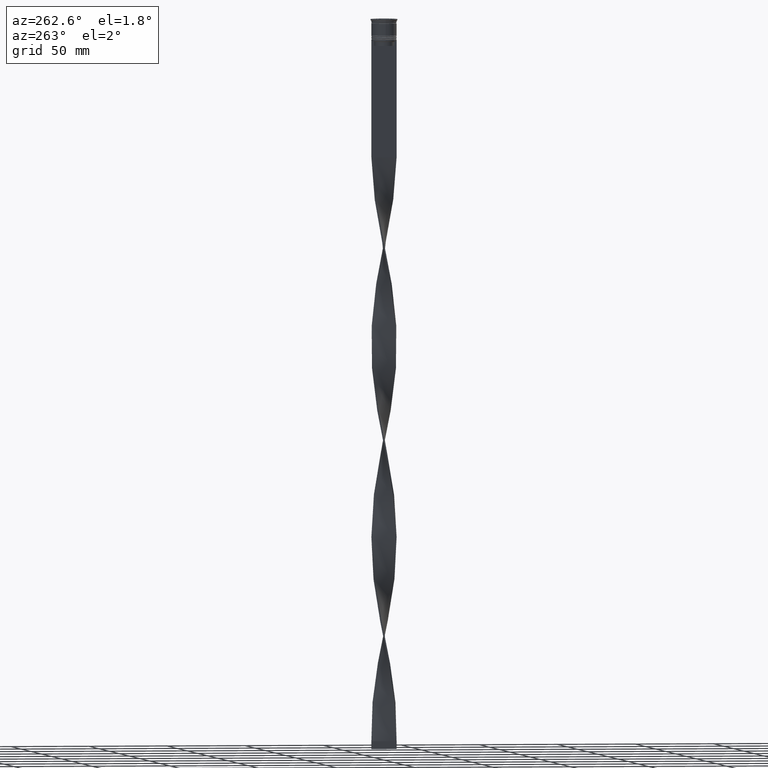
[diagram: clean part render]
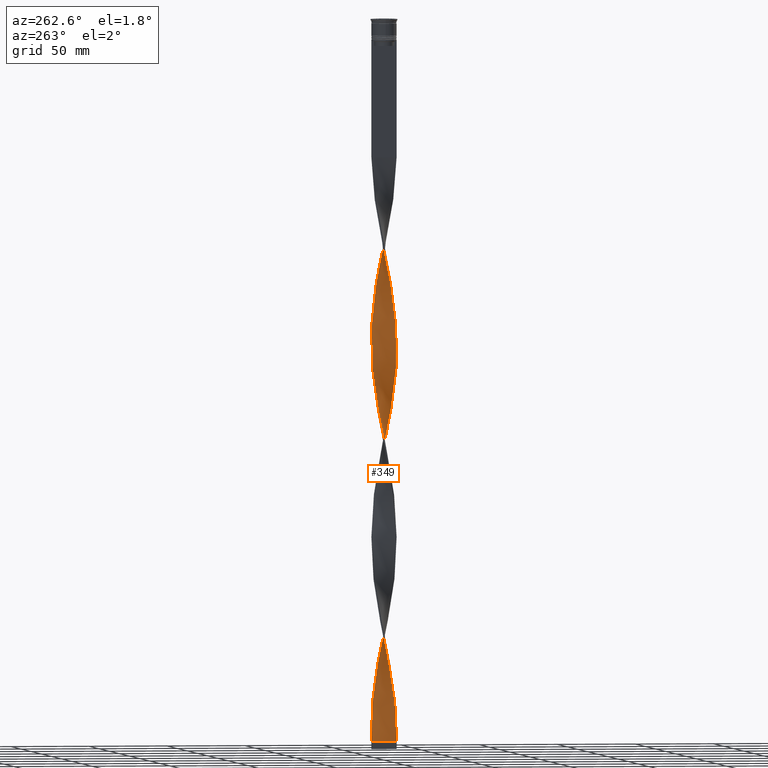
[diagram: same view with one face highlighted and labeled with its STEP entity id]
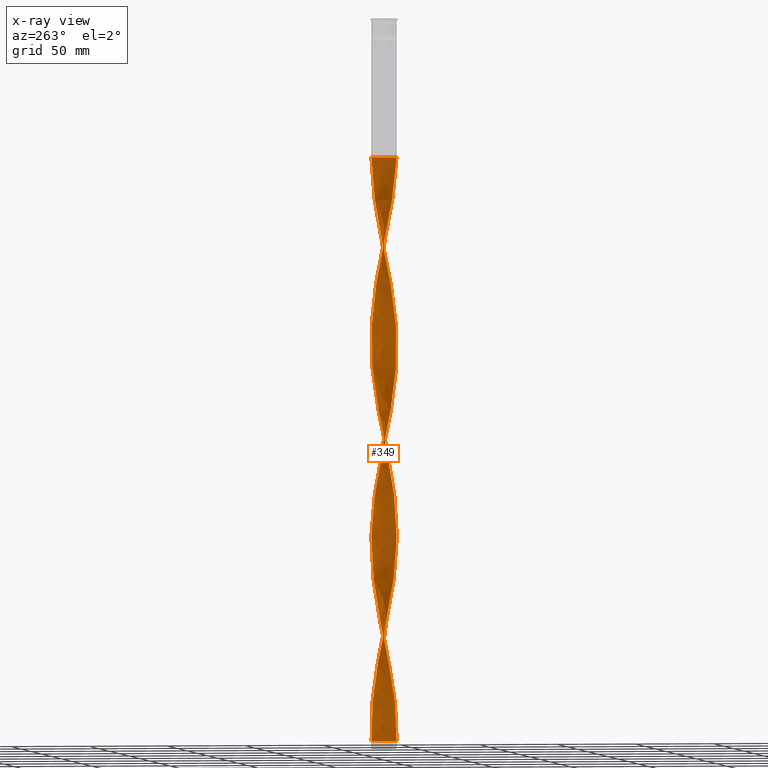
[diagram: x-ray of the same camera — body ghosted, the highlighted face saturated]
A machine part, auxiliary view. The second image highlights one B-rep face of the part: STEP entity #349.
The next image is the same camera in x-ray: the body ghosted, the highlighted face saturated — about 0% of this face is hidden behind the body in this view.
In plain terms, the highlighted face is a freeform B-spline surface patch.
Its self-contained STEP definition (entity closure, byte-faithful):
#11 = CARTESIAN_POINT ( 'NONE',  ( 6.873049228353429463, 4.124462911050406078, -168.6521739130434696 ) ) ;
#34 = CARTESIAN_POINT ( 'NONE',  ( -1.047214991364633807, 7.965799063039717076, -214.3550724637681242 ) ) ;
#56 = CARTESIAN_POINT ( 'NONE',  ( -6.536472323464030509, -4.671738810705480915, -176.7173913043478137 ) ) ;
#74 = CARTESIAN_POINT ( 'NONE',  ( -5.903909729730553835, 5.449262689030142326, -122.9492753623188577 ) ) ;
#79 = CARTESIAN_POINT ( 'NONE',  ( -7.111726286817905418, -3.738176450121946104, -171.3405797101449366 ) ) ;
#81 = CARTESIAN_POINT ( 'NONE',  ( 2.213065603025613282, 7.723532520004568802, -198.2246376811594359 ) ) ;
#97 = CARTESIAN_POINT ( 'NONE',  ( -7.554502245351247147, -2.734978935174108283, -165.9637681159420595 ) ) ;
#103 = CARTESIAN_POINT ( 'NONE',  ( -4.214783263011645076, 6.840045028850322950, -112.1956521739130466 ) ) ;
#106 = CARTESIAN_POINT ( 'NONE',  ( 6.187964285834322453, -5.095007163610173251, -120.2608695652173907 ) ) ;
#115 = CARTESIAN_POINT ( 'NONE',  ( 3.729461898010228538, 7.095147211389627451, -190.1594202898550634 ) ) ;
#121 = CARTESIAN_POINT ( 'NONE',  ( -4.660847909256209398, 6.521234297798383928, -114.8840579710144851 ) ) ;
#125 = CARTESIAN_POINT ( 'NONE',  ( -7.370647570865066278, 3.150167358427299558, -136.3913043478260931 ) ) ;
#126 = CARTESIAN_POINT ( 'NONE',  ( -4.583881302556712001, 6.575563261354197664, -233.1739130434782510 ) ) ;
#133 = CARTESIAN_POINT ( 'NONE',  ( 8.018693425164370225, 0.5011683390727725840, -149.8333333333333144 ) ) ;
#141 = CARTESIAN_POINT ( 'NONE',  ( 7.111726286817906306, 3.738176450121945660, -295.0072463768116222 ) ) ;
#145 = CARTESIAN_POINT ( 'NONE',  ( 3.244140533008797789, -7.350249393928924846, -230.4855072463767840 ) ) ;
#147 = CARTESIAN_POINT ( 'NONE',  ( -1.584676165788138080, -7.857404243742519334, -453.6231884057970660 ) ) ;
#153 = CARTESIAN_POINT ( 'NONE',  ( -7.705527183036060102, 2.207906436308481712, -260.0579710144927503 ) ) ;
#160 = CARTESIAN_POINT ( 'NONE',  ( 4.134100453396772679, 6.889109332278572140, -316.5144927536231876 ) ) ;
#168 = CARTESIAN_POINT ( 'NONE',  ( -1.047214991364638470, -7.965799063039706418, -208.9782608695651902 ) ) ;
#170 = CARTESIAN_POINT ( 'NONE',  ( -4.214783263011652181, -6.840045028850327391, -311.1376811594204241 ) ) ;
#180 = CARTESIAN_POINT ( 'NONE',  ( 6.247418983026106432, 5.021927523424159823, -421.3623188405797464 ) ) ;
#185 = CARTESIAN_POINT ( 'NONE',  ( -7.947228946841973674, 1.044773691512637548, -394.4782608695651902 ) ) ;
#189 = CARTESIAN_POINT ( 'NONE',  ( 7.705527183036053884, 2.207906436308476827, -286.9420289855072497 ) ) ;
#192 = CARTESIAN_POINT ( 'NONE',  ( 3.645814369522659693, -7.138489867120506815, -351.4637681159420595 ) ) ;
#201 = CARTESIAN_POINT ( 'NONE',  ( 1.047214991364636472, -7.965799063039713523, -338.0217391304347530 ) ) ;
#206 = CARTESIAN_POINT ( 'NONE',  ( -7.111726286817906306, -3.738176450121946548, -418.6739130434783078 ) ) ;
#210 = CARTESIAN_POINT ( 'NONE',  ( -5.106912555500773720, 6.202423566746443129, -364.9057971014492523 ) ) ;
#212 = CARTESIAN_POINT ( 'NONE',  ( -5.106912555500783490, -6.202423566746444905, -305.7608695652173196 ) ) ;
#221 = CARTESIAN_POINT ( 'NONE',  ( -0.4999999999999991673, 8.000000000000003553, -458.9999999999999432 ) ) ;
#228 = CARTESIAN_POINT ( 'NONE',  ( -4.214783263011645964, 6.840045028850323838, -359.5289855072463752 ) ) ;
#233 = CARTESIAN_POINT ( 'NONE',  ( 3.645814369522660137, 7.138489867120498822, -319.2028985507245693 ) ) ;
#236 = CARTESIAN_POINT ( 'NONE',  ( -3.729461898010225873, -7.095147211389629227, -313.8260869565216922 ) ) ;
#247 = CARTESIAN_POINT ( 'NONE',  ( -1.140765448138978844, -7.952940848717254596, -327.2681159420290555 ) ) ;
#260 = CARTESIAN_POINT ( 'NONE',  ( -7.730944694932261996, 2.117190148262233063, -389.1014492753622562 ) ) ;
#262 = CARTESIAN_POINT ( 'NONE',  ( -2.728603068017210198, -7.536890956966746380, -319.2028985507245693 ) ) ;
#269 = CARTESIAN_POINT ( 'NONE',  ( 7.586124921344944205, 2.646001252571962059, -407.9202898550724399 ) ) ;
#280 = CARTESIAN_POINT ( 'NONE',  ( 5.505411142615662001, -5.825843127888292727, -243.9275362318840337 ) ) ;
#281 = CARTESIAN_POINT ( 'NONE',  ( 0.5000000000000001110, 7.999999999999996447, -88.00000000000000000 ) ) ;
#299 = CARTESIAN_POINT ( 'NONE',  ( -5.436559199960631972, -5.890146353472328400, -432.1159420289855007 ) ) ;
#318 = CARTESIAN_POINT ( 'NONE',  ( -0.4999999999999991673, 8.000000000000003553, -458.9999999999999432 ) ) ;
#341 = CARTESIAN_POINT ( 'NONE',  ( 3.244140533008802674, 7.350249393928931063, -192.8478260869565020 ) ) ;
#349 = ADVANCED_FACE ( 'NONE', ( #422 ), #673, .T. ) ;
#359 = CARTESIAN_POINT ( 'NONE',  ( 5.505411142615669107, 5.825843127888296280, -179.4057971014492807 ) ) ;
#382 = CARTESIAN_POINT ( 'NONE',  ( -7.586124921344937100, 2.646001252571962947, -139.0797101449275317 ) ) ;
#399 = CARTESIAN_POINT ( 'NONE',  ( 5.106912555500772832, -6.202423566746444017, -241.2391304347826235 ) ) ;
#404 = CARTESIAN_POINT ( 'NONE',  ( -6.590928236321647482, 4.594592357818171990, -128.3260869565217206 ) ) ;
#406 = CARTESIAN_POINT ( 'NONE',  ( 5.505411142615669107, 5.825843127888296280, -179.4057971014492807 ) ) ;
#417 = CARTESIAN_POINT ( 'NONE',  ( 7.155170220385198121, -3.654333464282639721, -257.3695652173913118 ) ) ;
#422 = FACE_OUTER_BOUND ( 'NONE', #547, .T. ) ;
#425 = CARTESIAN_POINT ( 'NONE',  ( -0.5000000000000011102, -7.999999999999996447, -458.9999999999999432 ) ) ;
#432 = CARTESIAN_POINT ( 'NONE',  ( -0.4999999999999991673, 8.000000000000003553, -211.6666666666666572 ) ) ;
#439 = CARTESIAN_POINT ( 'NONE',  ( -7.705527183036053884, -2.207906436308477716, -163.2753623188405641 ) ) ;
#444 = CARTESIAN_POINT ( 'NONE',  ( 0.5000000000000001110, 7.999999999999996447, -88.00000000000000000 ) ) ;
#447 = CARTESIAN_POINT ( 'NONE',  ( 2.639832812930094974, -7.568439913203886427, -98.75362318840578268 ) ) ;
#455 = CARTESIAN_POINT ( 'NONE',  ( -6.873049228353431239, -4.124462911050402525, -292.3188405797101268 ) ) ;
#462 = CARTESIAN_POINT ( 'NONE',  ( -7.333114266084574950, -3.236577692648027416, -168.6521739130434696 ) ) ;
#466 = CARTESIAN_POINT ( 'NONE',  ( 1.140765448138977955, -7.952940848717248379, -219.7318840579710297 ) ) ;
#468 = CARTESIAN_POINT ( 'NONE',  ( -4.134100453396770902, 6.889109332278582798, -230.4855072463767840 ) ) ;
#477 = CARTESIAN_POINT ( 'NONE',  ( -2.122137340211641909, 7.749009424445339356, -219.7318840579710297 ) ) ;
#484 = CARTESIAN_POINT ( 'NONE',  ( 7.856552120720863286, 1.680833937442845150, -284.2536231884058111 ) ) ;
#488 = CARTESIAN_POINT ( 'NONE',  ( -7.333114266084574950, -3.236577692648027416, -168.6521739130434696 ) ) ;
#490 = CARTESIAN_POINT ( 'NONE',  ( 7.730944694932269989, 2.117190148262231286, -157.8985507246376585 ) ) ;
#496 = CARTESIAN_POINT ( 'NONE',  ( 6.590928236321653699, 4.594592357818171990, -418.6739130434783078 ) ) ;
#504 = CARTESIAN_POINT ( 'NONE',  ( -3.244140533008799121, 7.350249393928923958, -354.1521739130434980 ) ) ;
#511 = CARTESIAN_POINT ( 'NONE',  ( -3.244140533008798677, 7.350249393928923958, -354.1521739130434980 ) ) ;
#514 = CARTESIAN_POINT ( 'NONE',  ( -7.934400707984902823, 1.138106060579908485, -265.4347826086956275 ) ) ;
#524 = CARTESIAN_POINT ( 'NONE',  ( 0.5939902197518082128, 7.993570892838771869, -453.6231884057970660 ) ) ;
#530 = CARTESIAN_POINT ( 'NONE',  ( -7.730944694932261996, 2.117190148262233063, -389.1014492753622562 ) ) ;
#535 = CARTESIAN_POINT ( 'NONE',  ( 5.903909729730552058, -5.449262689030144102, -246.6159420289854722 ) ) ;
#537 = CARTESIAN_POINT ( 'NONE',  ( -1.140765448138978622, -7.952940848717255484, -327.2681159420290555 ) ) ;
#546 = CARTESIAN_POINT ( 'NONE',  ( 6.873049228353429463, 4.124462911050406078, -415.9855072463768124 ) ) ;
#547 = EDGE_LOOP ( 'NONE', ( #561, #2300, #787, #664 ) ) ;
#551 = CARTESIAN_POINT ( 'NONE',  ( -6.536472323464030509, -4.671738810705480915, -424.0507246376811281 ) ) ;
#556 = CARTESIAN_POINT ( 'NONE',  ( -0.04721499136463552099, 8.034200936960285588, -338.0217391304347530 ) ) ;
#558 = CARTESIAN_POINT ( 'NONE',  ( -7.730944694932271766, -2.117190148262229066, -281.5652173913043725 ) ) ;
#561 = ORIENTED_EDGE ( 'NONE', *, *, #1879, .F. ) ;
#567 = CARTESIAN_POINT ( 'NONE',  ( 5.436559199960634636, -5.890146353472335505, -362.2173913043478137 ) ) ;
#573 = CARTESIAN_POINT ( 'NONE',  ( -8.012249295248929926, -0.5953781837169674906, -402.5434782608696196 ) ) ;
#578 = CARTESIAN_POINT ( 'NONE',  ( 7.875764468519586003, -1.588379043952506064, -268.1231884057971797 ) ) ;
#581 = CARTESIAN_POINT ( 'NONE',  ( 6.824099305140972405, -4.204957630413717062, -372.9710144927536248 ) ) ;
#592 = CARTESIAN_POINT ( 'NONE',  ( 0.5000000000000001110, -8.000000000000003553, -335.3333333333333144 ) ) ;
#604 = CARTESIAN_POINT ( 'NONE',  ( 6.824099305140967964, 4.204957630413712621, -297.6956521739130039 ) ) ;
#606 = CARTESIAN_POINT ( 'NONE',  ( -7.947228946841980779, -1.044773691512637548, -276.1884057971014386 ) ) ;
#622 = CARTESIAN_POINT ( 'NONE',  ( -7.705527183036053884, -2.207906436308477716, -410.6086956521738216 ) ) ;
#654 = VECTOR ( 'NONE', #2241, 1000.000000000000000 ) ;
#664 = ORIENTED_EDGE ( 'NONE', *, *, #4063, .F. ) ;
#667 = CARTESIAN_POINT ( 'NONE',  ( 5.106912555500779050, 6.202423566746448458, -429.4275362318841189 ) ) ;
#673 =( BOUNDED_SURFACE ( )  B_SPLINE_SURFACE ( 1, 2, ( 
 ( #444, #2487, #3418, #3821, #1480, #2135, #2834, #1148, #3090, #103, #3773, #1791, #2419, #823, #3399, #404, #801, #1766, #125, #774, #2765, #3753, #2460, #1103, #1745, #4105, #2439, #3068, #2156, #1811, #488, #79, #755, #3112, #2810, #1411, #1123, #1833, #2743, #3797, #3156, #3485, #1081, #2092, #2112, #168, #3133, #3442, #1458, #466, #2787, #4127, #1506, #145, #1546, #1527, #843, #2854, #280, #535, #1858, #1613, #3182, #4194, #889, #3271, #3911, #578, #3604, #4175, #2177, #1262, #1171, #2244, #189, #1897, #3534, #3554, #604, #1877, #1192, #3867, #2900, #3222, #2506, #2572, #233, #2550, #3508, #3203, #866, #1594, #3576, #556, #930, #4216, #1571, #3843, #4239, #511, #4260, #2525, #2203, #210, #1241, #2874, #1218, #1922, #3892, #3249, #2223, #907, #260, #2923, #2591, #3932, #2270, #1944, #3624, #2941, #622, #4280, #1964, #1283, #954, #2613, #3959, #3290, #299, #2292, #4152, #3135, #2158, #1813, #2463, #3159, #147, #3420, #425 ),
 ( #1058, #1395, #1125, #757, #447, #4107, #1768, #2745, #2789, #1440, #2724, #2094, #106, #2398, #2813, #2137, #825, #4060, #4085, #2116, #1482, #3734, #1460, #3487, #737, #4129, #490, #1152, #2074, #3401, #2767, #2489, #3467, #3091, #406, #3800, #1747, #3071, #3823, #1835, #1105, #81, #1414, #1084, #2421, #2441, #3755, #3775, #776, #3444, #1793, #3114, #804, #468, #126, #3607, #1173, #1596, #1946, #2574, #2179, #2225, #3870, #3894, #3935, #2206, #514, #4196, #3225, #3557, #606, #2903, #558, #2876, #3845, #3536, #1194, #1924, #3913, #891, #1264, #212, #1899, #170, #236, #1509, #262, #2837, #1861, #537, #1573, #2527, #3184, #910, #4177, #2246, #2508, #845, #192, #4241, #2925, #868, #1243, #1880, #3578, #3511, #581, #1529, #1220, #4262, #2856, #3205, #3251, #1548, #4219, #2553, #2594, #933, #2272, #4306, #3997, #1615, #2615, #1657, #3706, #4020, #1286, #667, #2657, #2638, #3353, #1329, #2680, #3292, #3315, #3626, #972, #3005, #687 ) ),
 .UNSPECIFIED., .F., .F., .F. ) 
 B_SPLINE_SURFACE_WITH_KNOTS ( ( 2, 2 ),
 ( 3, 2, 2, 2, 2, 2, 2, 2, 2, 2, 2, 2, 2, 2, 2, 2, 2, 2, 2, 2, 2, 2, 2, 2, 2, 2, 2, 2, 2, 2, 2, 2, 2, 2, 2, 2, 2, 2, 2, 2, 2, 2, 2, 2, 2, 2, 2, 2, 2, 2, 2, 2, 2, 2, 2, 2, 2, 2, 2, 2, 2, 2, 2, 2, 2, 2, 2, 2, 2, 3 ),
 ( 0.000000000000000000, 1.000000000000000000 ),
 ( 0.000000000000000000, 0.01086956521739130405, 0.02173913043478260809, 0.03260869565217391214, 0.04347826086956521618, 0.05434782608695652023, 0.06521739130434782428, 0.07608695652173913526, 0.08695652173913043237, 0.09782608695652174335, 0.1086956521739130405, 0.1195652173913043514, 0.1304347826086956486, 0.1413043478260869457, 0.1521739130434782705, 0.1630434782608695676, 0.1739130434782608647, 0.1847826086956521618, 0.1956521739130434867, 0.2065217391304347838, 0.2173913043478260809, 0.2282608695652173780, 0.2391304347826087029, 0.2500000000000000000, 0.2608695652173912971, 0.2717391304347825942, 0.2826086956521738913, 0.2934782608695652439, 0.3043478260869565410, 0.3152173913043478382, 0.3260869565217391353, 0.3369565217391304324, 0.3478260869565217295, 0.3586956521739130266, 0.3695652173913043237, 0.3804347826086956763, 0.3913043478260869734, 0.4021739130434782705, 0.4130434782608695676, 0.4239130434782608647, 0.4347826086956521618, 0.4456521739130434590, 0.4565217391304347561, 0.4673913043478261087, 0.4782608695652174058, 0.4891304347826087029, 0.5000000000000000000, 0.5108695652173913526, 0.5217391304347825942, 0.5326086956521739468, 0.5434782608695651884, 0.5543478260869565410, 0.5652173913043477826, 0.5760869565217391353, 0.5869565217391304879, 0.5978260869565217295, 0.6086956521739130821, 0.6195652173913043237, 0.6304347826086956763, 0.6413043478260869179, 0.6521739130434782705, 0.6630434782608695121, 0.6739130434782608647, 0.6847826086956522174, 0.6956521739130434590, 0.7065217391304348116, 0.7173913043478260532, 0.7282608695652174058, 0.7391304347826086474, 0.7500000000000000000 ),
 .UNSPECIFIED. ) 
 GEOMETRIC_REPRESENTATION_ITEM ( )  RATIONAL_B_SPLINE_SURFACE ( (
 ( 1.000000000000000000, 0.9976687691905391508, 1.000000000000000000, 0.9976687691905391508, 1.000000000000000000, 0.9976687691905391508, 1.000000000000000000, 0.9976687691905391508, 1.000000000000000000, 0.9976687691905391508, 1.000000000000000000, 0.9976687691905391508, 1.000000000000000000, 0.9976687691905391508, 1.000000000000000000, 0.9976687691905391508, 1.000000000000000000, 0.9976687691905391508, 1.000000000000000000, 0.9976687691905391508, 1.000000000000000000, 0.9976687691905391508, 1.000000000000000000, 0.9976687691905391508, 1.000000000000000000, 0.9976687691905391508, 1.000000000000000000, 0.9976687691905391508, 1.000000000000000000, 0.9976687691905391508, 1.000000000000000000, 0.9976687691905391508, 1.000000000000000000, 0.9976687691905391508, 1.000000000000000000, 0.9976687691905391508, 1.000000000000000000, 0.9976687691905391508, 1.000000000000000000, 0.9976687691905391508, 1.000000000000000000, 0.9976687691905391508, 1.000000000000000000, 0.9976687691905391508, 1.000000000000000000, 0.9976687691905391508, 1.000000000000000000, 0.9976687691905391508, 1.000000000000000000, 0.9976687691905391508, 1.000000000000000000, 0.9976687691905391508, 1.000000000000000000, 0.9976687691905391508, 1.000000000000000000, 0.9976687691905391508, 1.000000000000000000, 0.9976687691905391508, 1.000000000000000000, 0.9976687691905391508, 1.000000000000000000, 0.9976687691905391508, 1.000000000000000000, 0.9976687691905391508, 1.000000000000000000, 0.9976687691905391508, 1.000000000000000000, 0.9976687691905391508, 1.000000000000000000, 0.9976687691905391508, 1.000000000000000000, 0.9976687691905391508, 1.000000000000000000, 0.9976687691905391508, 1.000000000000000000, 0.9976687691905391508, 1.000000000000000000, 0.9976687691905391508, 1.000000000000000000, 0.9976687691905391508, 1.000000000000000000, 0.9976687691905391508, 1.000000000000000000, 0.9976687691905391508, 1.000000000000000000, 0.9976687691905391508, 1.000000000000000000, 0.9976687691905391508, 1.000000000000000000, 0.9976687691905391508, 1.000000000000000000, 0.9976687691905391508, 1.000000000000000000, 0.9976687691905391508, 1.000000000000000000, 0.9976687691905391508, 1.000000000000000000, 0.9976687691905391508, 1.000000000000000000, 0.9976687691905391508, 1.000000000000000000, 0.9976687691905391508, 1.000000000000000000, 0.9976687691905391508, 1.000000000000000000, 0.9976687691905391508, 1.000000000000000000, 0.9976687691905391508, 1.000000000000000000, 0.9976687691905391508, 1.000000000000000000, 0.9976687691905391508, 1.000000000000000000, 0.9976687691905391508, 1.000000000000000000, 0.9976687691905391508, 1.000000000000000000, 0.9976687691905391508, 1.000000000000000000, 0.9976687691905391508, 1.000000000000000000, 0.9976687691905391508, 1.000000000000000000, 0.9976687691905391508, 1.000000000000000000, 0.9976687691905391508, 1.000000000000000000, 0.9976687691905391508, 1.000000000000000000, 0.9976687691905391508, 1.000000000000000000, 0.9976687691905391508, 1.000000000000000000, 0.9976687691905391508, 1.000000000000000000, 0.9976687691905391508, 1.000000000000000000, 0.9976687691905391508, 1.000000000000000000),
 ( 1.000000000000000000, 0.9976687691905391508, 1.000000000000000000, 0.9976687691905391508, 1.000000000000000000, 0.9976687691905391508, 1.000000000000000000, 0.9976687691905391508, 1.000000000000000000, 0.9976687691905391508, 1.000000000000000000, 0.9976687691905391508, 1.000000000000000000, 0.9976687691905391508, 1.000000000000000000, 0.9976687691905391508, 1.000000000000000000, 0.9976687691905391508, 1.000000000000000000, 0.9976687691905391508, 1.000000000000000000, 0.9976687691905391508, 1.000000000000000000, 0.9976687691905391508, 1.000000000000000000, 0.9976687691905391508, 1.000000000000000000, 0.9976687691905391508, 1.000000000000000000, 0.9976687691905391508, 1.000000000000000000, 0.9976687691905391508, 1.000000000000000000, 0.9976687691905391508, 1.000000000000000000, 0.9976687691905391508, 1.000000000000000000, 0.9976687691905391508, 1.000000000000000000, 0.9976687691905391508, 1.000000000000000000, 0.9976687691905391508, 1.000000000000000000, 0.9976687691905391508, 1.000000000000000000, 0.9976687691905391508, 1.000000000000000000, 0.9976687691905391508, 1.000000000000000000, 0.9976687691905391508, 1.000000000000000000, 0.9976687691905391508, 1.000000000000000000, 0.9976687691905391508, 1.000000000000000000, 0.9976687691905391508, 1.000000000000000000, 0.9976687691905391508, 1.000000000000000000, 0.9976687691905391508, 1.000000000000000000, 0.9976687691905391508, 1.000000000000000000, 0.9976687691905391508, 1.000000000000000000, 0.9976687691905391508, 1.000000000000000000, 0.9976687691905391508, 1.000000000000000000, 0.9976687691905391508, 1.000000000000000000, 0.9976687691905391508, 1.000000000000000000, 0.9976687691905391508, 1.000000000000000000, 0.9976687691905391508, 1.000000000000000000, 0.9976687691905391508, 1.000000000000000000, 0.9976687691905391508, 1.000000000000000000, 0.9976687691905391508, 1.000000000000000000, 0.9976687691905391508, 1.000000000000000000, 0.9976687691905391508, 1.000000000000000000, 0.9976687691905391508, 1.000000000000000000, 0.9976687691905391508, 1.000000000000000000, 0.9976687691905391508, 1.000000000000000000, 0.9976687691905391508, 1.000000000000000000, 0.9976687691905391508, 1.000000000000000000, 0.9976687691905391508, 1.000000000000000000, 0.9976687691905391508, 1.000000000000000000, 0.9976687691905391508, 1.000000000000000000, 0.9976687691905391508, 1.000000000000000000, 0.9976687691905391508, 1.000000000000000000, 0.9976687691905391508, 1.000000000000000000, 0.9976687691905391508, 1.000000000000000000, 0.9976687691905391508, 1.000000000000000000, 0.9976687691905391508, 1.000000000000000000, 0.9976687691905391508, 1.000000000000000000, 0.9976687691905391508, 1.000000000000000000, 0.9976687691905391508, 1.000000000000000000, 0.9976687691905391508, 1.000000000000000000, 0.9976687691905391508, 1.000000000000000000, 0.9976687691905391508, 1.000000000000000000, 0.9976687691905391508, 1.000000000000000000, 0.9976687691905391508, 1.000000000000000000, 0.9976687691905391508, 1.000000000000000000, 0.9976687691905391508, 1.000000000000000000, 0.9976687691905391508, 1.000000000000000000, 0.9976687691905391508, 1.000000000000000000) ) ) 
 REPRESENTATION_ITEM ( '' )  SURFACE ( )  );
#684 = CARTESIAN_POINT ( 'NONE',  ( 7.155170220385206115, 3.654333464282639277, -165.9637681159420595 ) ) ;
#687 = CARTESIAN_POINT ( 'NONE',  ( -0.4999999999999991673, 8.000000000000003553, -458.9999999999999432 ) ) ;
#705 = CARTESIAN_POINT ( 'NONE',  ( -3.244140533008799121, 7.350249393928923958, -106.8188405797101410 ) ) ;
#729 = CARTESIAN_POINT ( 'NONE',  ( -7.856552120720863286, -1.680833937442846038, -160.5869565217391539 ) ) ;
#737 = CARTESIAN_POINT ( 'NONE',  ( 7.947228946841980779, 1.044773691512636882, -152.5217391304347530 ) ) ;
#751 = CARTESIAN_POINT ( 'NONE',  ( 6.247418983026099326, -5.021927523424157158, -249.3043478260869392 ) ) ;
#755 = CARTESIAN_POINT ( 'NONE',  ( -6.824099305140967076, -4.204957630413713510, -174.0289855072463752 ) ) ;
#757 = CARTESIAN_POINT ( 'NONE',  ( 2.122137340211641909, -7.749009424445339356, -96.06521739130434412 ) ) ;
#763 = CARTESIAN_POINT ( 'NONE',  ( 7.370647570865075160, 3.150167358427300890, -163.2753623188405641 ) ) ;
#769 = CARTESIAN_POINT ( 'NONE',  ( 4.214783263011645076, -6.840045028850323838, -235.8623188405797464 ) ) ;
#774 = CARTESIAN_POINT ( 'NONE',  ( -7.586124921344937100, 2.646001252571962947, -139.0797101449275317 ) ) ;
#776 = CARTESIAN_POINT ( 'NONE',  ( -1.584676165788137192, 7.857404243742526440, -217.0434782608695627 ) ) ;
#786 = CARTESIAN_POINT ( 'NONE',  ( -8.018693425164370225, -0.5011683390727715848, -273.4999999999999432 ) ) ;
#787 = ORIENTED_EDGE ( 'NONE', *, *, #3314, .F. ) ;
#794 = CARTESIAN_POINT ( 'NONE',  ( -4.583881302556713777, -6.575563261354187006, -190.1594202898550634 ) ) ;
#801 = CARTESIAN_POINT ( 'NONE',  ( -6.873049228353423246, 4.124462911050404301, -131.0144927536231876 ) ) ;
#804 = CARTESIAN_POINT ( 'NONE',  ( -3.645814369522657472, 7.138489867120507704, -227.7971014492753454 ) ) ;
#813 = CARTESIAN_POINT ( 'NONE',  ( 7.730944694932269989, 2.117190148262231286, -157.8985507246376585 ) ) ;
#819 = CARTESIAN_POINT ( 'NONE',  ( -4.583881302556713777, -6.575563261354187006, -437.4927536231883778 ) ) ;
#823 = CARTESIAN_POINT ( 'NONE',  ( -5.903909729730553835, 5.449262689030142326, -122.9492753623188577 ) ) ;
#825 = CARTESIAN_POINT ( 'NONE',  ( 7.333114266084581168, -3.236577692648031412, -131.0144927536231876 ) ) ;
#833 = CARTESIAN_POINT ( 'NONE',  ( 7.875764468519596662, 1.588379043952501402, -155.2101449275362199 ) ) ;
#839 = CARTESIAN_POINT ( 'NONE',  ( -5.106912555500773720, 6.202423566746443129, -364.9057971014491955 ) ) ;
#843 = CARTESIAN_POINT ( 'NONE',  ( 4.660847909256209398, -6.521234297798382151, -238.5507246376811565 ) ) ;
#845 = CARTESIAN_POINT ( 'NONE',  ( 3.157528285648548927, -7.387870401962434386, -348.7753623188405072 ) ) ;
#852 = CARTESIAN_POINT ( 'NONE',  ( 7.856552120720868615, -1.680833937442850923, -386.4130434782609314 ) ) ;
#861 = CARTESIAN_POINT ( 'NONE',  ( 4.583881302556711113, 6.575563261354189670, -313.8260869565216922 ) ) ;
#866 = CARTESIAN_POINT ( 'NONE',  ( 1.584676165788142521, 7.857404243742519334, -329.9565217391304373 ) ) ;
#868 = CARTESIAN_POINT ( 'NONE',  ( 5.033662151716659316, -6.262017190429809865, -359.5289855072463752 ) ) ;
#878 = CARTESIAN_POINT ( 'NONE',  ( 7.554502245351252476, -2.734978935174111836, -381.0362318840579974 ) ) ;
#884 = CARTESIAN_POINT ( 'NONE',  ( 6.536472323464030509, 4.671738810705480027, -300.3840579710145562 ) ) ;
#889 = CARTESIAN_POINT ( 'NONE',  ( 7.370647570865066278, -3.150167358427300446, -260.0579710144927503 ) ) ;
#891 = CARTESIAN_POINT ( 'NONE',  ( -5.903909729730560052, -5.449262689030146767, -300.3840579710144993 ) ) ;
#898 = CARTESIAN_POINT ( 'NONE',  ( 4.134100453396771790, -6.889109332278581022, -354.1521739130434980 ) ) ;
#903 = CARTESIAN_POINT ( 'NONE',  ( -2.728603068017203537, 7.536890956966741939, -351.4637681159420595 ) ) ;
#907 = CARTESIAN_POINT ( 'NONE',  ( -7.586124921344937100, 2.646001252571962947, -386.4130434782609882 ) ) ;
#910 = CARTESIAN_POINT ( 'NONE',  ( 1.047214991364636472, -7.965799063039713523, -338.0217391304347530 ) ) ;
#919 = CARTESIAN_POINT ( 'NONE',  ( -5.505411142615672659, -5.825843127888293616, -303.0724637681159379 ) ) ;
#930 = CARTESIAN_POINT ( 'NONE',  ( -0.5939902197518068805, 7.993570892838764763, -340.7101449275362484 ) ) ;
#933 = CARTESIAN_POINT ( 'NONE',  ( 7.875764468519596662, 1.588379043952501180, -402.5434782608696196 ) ) ;
#954 = CARTESIAN_POINT ( 'NONE',  ( -6.824099305140967076, -4.204957630413713510, -421.3623188405797464 ) ) ;
#972 = CARTESIAN_POINT ( 'NONE',  ( 0.5939902197518082128, 7.993570892838771869, -453.6231884057970660 ) ) ;
#1012 = CARTESIAN_POINT ( 'NONE',  ( 8.015471360206651852, -0.04710492232209864683, -147.1449275362318758 ) ) ;
#1032 = CARTESIAN_POINT ( 'NONE',  ( -5.505411142615662001, 5.825843127888292727, -120.2608695652173907 ) ) ;
#1051 = CARTESIAN_POINT ( 'NONE',  ( -7.111726286817906306, -3.738176450121946548, -171.3405797101449366 ) ) ;
#1058 = CARTESIAN_POINT ( 'NONE',  ( 0.5000000000000001110, -8.000000000000003553, -88.00000000000000000 ) ) ;
#1076 = CARTESIAN_POINT ( 'NONE',  ( 6.873049228353421469, -4.124462911050407854, -254.6811594202898448 ) ) ;
#1081 = CARTESIAN_POINT ( 'NONE',  ( -2.639832812930093198, -7.568439913203878433, -200.9130434782608745 ) ) ;
#1084 = CARTESIAN_POINT ( 'NONE',  ( 1.140765448138981286, 7.952940848717255484, -203.6014492753623415 ) ) ;
#1091 = CARTESIAN_POINT ( 'NONE',  ( 7.856552120720868615, -1.680833937442850923, -139.0797101449275317 ) ) ;
#1099 = CARTESIAN_POINT ( 'NONE',  ( -7.370647570865066278, 3.150167358427299558, -136.3913043478260931 ) ) ;
#1103 = CARTESIAN_POINT ( 'NONE',  ( -8.018693425164364896, 0.5011683390727736942, -149.8333333333332860 ) ) ;
#1105 = CARTESIAN_POINT ( 'NONE',  ( 2.728603068017209310, 7.536890956966746380, -195.5362318840579405 ) ) ;
#1111 = CARTESIAN_POINT ( 'NONE',  ( -7.554502245351251588, 2.734978935174113612, -257.3695652173913118 ) ) ;
#1118 = CARTESIAN_POINT ( 'NONE',  ( -2.122137340211641909, -7.749009424445332250, -203.6014492753623415 ) ) ;
#1123 = CARTESIAN_POINT ( 'NONE',  ( -5.436559199960631972, -5.890146353472328400, -184.7826086956521578 ) ) ;
#1125 = CARTESIAN_POINT ( 'NONE',  ( 1.584676165788138524, -7.857404243742526440, -93.37681159420290555 ) ) ;
#1133 = CARTESIAN_POINT ( 'NONE',  ( -3.645814369522657472, 7.138489867120507704, -227.7971014492753454 ) ) ;
#1141 = CARTESIAN_POINT ( 'NONE',  ( 6.824099305140967964, 4.204957630413712621, -297.6956521739130039 ) ) ;
#1148 = CARTESIAN_POINT ( 'NONE',  ( -3.244140533008798677, 7.350249393928923958, -106.8188405797101268 ) ) ;
#1152 = CARTESIAN_POINT ( 'NONE',  ( 7.586124921344944205, 2.646001252571962059, -160.5869565217391823 ) ) ;
#1160 = CARTESIAN_POINT ( 'NONE',  ( 2.213065603025613282, 7.723532520004568802, -198.2246376811594359 ) ) ;
#1166 = CARTESIAN_POINT ( 'NONE',  ( 7.934400707984897494, 1.138106060579904266, -281.5652173913043725 ) ) ;
#1171 = CARTESIAN_POINT ( 'NONE',  ( 7.934400707984897494, 1.138106060579904266, -281.5652173913043725 ) ) ;
#1173 = CARTESIAN_POINT ( 'NONE',  ( -5.436559199960634636, 5.890146353472335505, -238.5507246376811565 ) ) ;
#1182 = CARTESIAN_POINT ( 'NONE',  ( 4.214783263011652181, 6.840045028850328279, -434.8043478260869392 ) ) ;
#1188 = CARTESIAN_POINT ( 'NONE',  ( -7.333114266084574950, -3.236577692648027416, -415.9855072463768124 ) ) ;
#1192 = CARTESIAN_POINT ( 'NONE',  ( 6.187964285834320677, 5.095007163610164369, -303.0724637681159379 ) ) ;
#1194 = CARTESIAN_POINT ( 'NONE',  ( -6.873049228353431239, -4.124462911050402525, -292.3188405797101268 ) ) ;
#1204 = CARTESIAN_POINT ( 'NONE',  ( 5.505411142615669107, 5.825843127888296280, -426.7391304347826235 ) ) ;
#1212 = CARTESIAN_POINT ( 'NONE',  ( 1.047214991364639358, 7.965799063039706418, -332.6449275362318758 ) ) ;
#1218 = CARTESIAN_POINT ( 'NONE',  ( -6.247418983026099326, 5.021927523424156270, -372.9710144927536248 ) ) ;
#1220 = CARTESIAN_POINT ( 'NONE',  ( 7.333114266084581168, -3.236577692648031412, -378.3478260869565020 ) ) ;
#1230 = CARTESIAN_POINT ( 'NONE',  ( -2.728603068017210198, -7.536890956966746380, -319.2028985507245693 ) ) ;
#1236 = CARTESIAN_POINT ( 'NONE',  ( -3.645814369522659248, -7.138489867120498822, -442.8695652173913118 ) ) ;
#1241 = CARTESIAN_POINT ( 'NONE',  ( -5.505411142615662001, 5.825843127888292727, -367.5942028985506909 ) ) ;
#1243 = CARTESIAN_POINT ( 'NONE',  ( 5.436559199960634636, -5.890146353472335505, -362.2173913043478137 ) ) ;
#1252 = CARTESIAN_POINT ( 'NONE',  ( -1.676915525582296285, -7.838236684360910367, -324.5797101449275033 ) ) ;
#1257 = CARTESIAN_POINT ( 'NONE',  ( -0.5000000000000011102, -7.999999999999996447, -458.9999999999999432 ) ) ;
#1262 = CARTESIAN_POINT ( 'NONE',  ( 8.012249295248929926, 0.5953781837169630498, -278.8768115942028203 ) ) ;
#1264 = CARTESIAN_POINT ( 'NONE',  ( -5.505411142615672659, -5.825843127888293616, -303.0724637681159379 ) ) ;
#1272 = CARTESIAN_POINT ( 'NONE',  ( 4.583881302556714665, -6.575563261354194999, -356.8405797101449366 ) ) ;
#1283 = CARTESIAN_POINT ( 'NONE',  ( -7.111726286817905418, -3.738176450121946104, -418.6739130434783078 ) ) ;
#1286 = CARTESIAN_POINT ( 'NONE',  ( 5.505411142615669107, 5.825843127888296280, -426.7391304347826235 ) ) ;
#1307 = CARTESIAN_POINT ( 'NONE',  ( 3.645814369522659693, -7.138489867120506815, -104.1304347826086882 ) ) ;
#1329 = CARTESIAN_POINT ( 'NONE',  ( 3.244140533008802674, 7.350249393928931063, -440.1811594202897595 ) ) ;
#1345 = CARTESIAN_POINT ( 'NONE',  ( -7.730944694932271766, -2.117190148262229066, -281.5652173913043725 ) ) ;
#1348 = CARTESIAN_POINT ( 'NONE',  ( -0.5939902197518068805, 7.993570892838764763, -93.37681159420290555 ) ) ;
#1369 = CARTESIAN_POINT ( 'NONE',  ( -4.134100453396770902, 6.889109332278581910, -230.4855072463767840 ) ) ;
#1371 = CARTESIAN_POINT ( 'NONE',  ( -6.187964285834318900, -5.095007163610166145, -179.4057971014492807 ) ) ;
#1388 = CARTESIAN_POINT ( 'NONE',  ( 5.903909729730552058, -5.449262689030144102, -246.6159420289854722 ) ) ;
#1395 = CARTESIAN_POINT ( 'NONE',  ( 1.047214991364636472, -7.965799063039713523, -90.68840579710145278 ) ) ;
#1407 = CARTESIAN_POINT ( 'NONE',  ( -3.645814369522659248, -7.138489867120498822, -195.5362318840579405 ) ) ;
#1411 = CARTESIAN_POINT ( 'NONE',  ( -5.839456248204605515, -5.518275516514855816, -182.0942028985507477 ) ) ;
#1414 = CARTESIAN_POINT ( 'NONE',  ( 1.676915525582295619, 7.838236684360910367, -200.9130434782608745 ) ) ;
#1433 = CARTESIAN_POINT ( 'NONE',  ( 8.018693425164364896, -0.5011683390727745824, -273.4999999999999432 ) ) ;
#1440 = CARTESIAN_POINT ( 'NONE',  ( 5.033662151716659316, -6.262017190429809865, -112.1956521739130466 ) ) ;
#1447 = CARTESIAN_POINT ( 'NONE',  ( 6.824099305140972405, -4.204957630413717062, -125.6376811594202820 ) ) ;
#1454 = CARTESIAN_POINT ( 'NONE',  ( -5.033662151716655764, -6.262017190429802760, -187.4710144927535964 ) ) ;
#1458 = CARTESIAN_POINT ( 'NONE',  ( 0.5939902197518053262, -7.993570892838764763, -217.0434782608695627 ) ) ;
#1460 = CARTESIAN_POINT ( 'NONE',  ( 8.015471360206651852, -0.04710492232209864683, -147.1449275362318758 ) ) ;
#1468 = CARTESIAN_POINT ( 'NONE',  ( 2.728603068017209310, 7.536890956966746380, -195.5362318840579405 ) ) ;
#1476 = CARTESIAN_POINT ( 'NONE',  ( 1.584676165788142521, 7.857404243742519334, -329.9565217391304373 ) ) ;
#1480 = CARTESIAN_POINT ( 'NONE',  ( -1.676915525582293620, 7.838236684360903261, -98.75362318840578268 ) ) ;
#1482 = CARTESIAN_POINT ( 'NONE',  ( 7.934400707984902823, -1.138106060579910928, -141.7681159420289703 ) ) ;
#1491 = CARTESIAN_POINT ( 'NONE',  ( -8.012249295248937031, 0.5953781837169740410, -268.1231884057971229 ) ) ;
#1499 = CARTESIAN_POINT ( 'NONE',  ( -7.586124921344937100, 2.646001252571962947, -386.4130434782609314 ) ) ;
#1506 = CARTESIAN_POINT ( 'NONE',  ( 2.728603068017201316, -7.536890956966742827, -227.7971014492753454 ) ) ;
#1509 = CARTESIAN_POINT ( 'NONE',  ( -3.244140533008806671, -7.350249393928927510, -316.5144927536232444 ) ) ;
#1518 = CARTESIAN_POINT ( 'NONE',  ( -6.590928236321654587, -4.594592357818171990, -295.0072463768116222 ) ) ;
#1523 = CARTESIAN_POINT ( 'NONE',  ( 3.645814369522660137, 7.138489867120498822, -319.2028985507245693 ) ) ;
#1527 = CARTESIAN_POINT ( 'NONE',  ( 4.214783263011644188, -6.840045028850322950, -235.8623188405797180 ) ) ;
#1529 = CARTESIAN_POINT ( 'NONE',  ( 7.111726286817909859, -3.738176450121951433, -375.6594202898551771 ) ) ;
#1537 = CARTESIAN_POINT ( 'NONE',  ( 3.157528285648548927, -7.387870401962434386, -348.7753623188405641 ) ) ;
#1542 = CARTESIAN_POINT ( 'NONE',  ( 6.187964285834320677, 5.095007163610164369, -303.0724637681159379 ) ) ;
#1546 = CARTESIAN_POINT ( 'NONE',  ( 3.729461898010220100, -7.095147211389623898, -233.1739130434782510 ) ) ;
#1548 = CARTESIAN_POINT ( 'NONE',  ( 8.012249295248937031, -0.5953781837169696001, -391.7898550724637516 ) ) ;
#1558 = CARTESIAN_POINT ( 'NONE',  ( 5.033662151716659316, -6.262017190429809865, -359.5289855072463752 ) ) ;
#1565 = CARTESIAN_POINT ( 'NONE',  ( -7.705527183036053884, -2.207906436308477716, -410.6086956521738216 ) ) ;
#1571 = CARTESIAN_POINT ( 'NONE',  ( -1.676915525582293620, 7.838236684360903261, -346.0869565217391255 ) ) ;
#1573 = CARTESIAN_POINT ( 'NONE',  ( -0.5939902197518127647, -7.993570892838771869, -329.9565217391304373 ) ) ;
#1583 = CARTESIAN_POINT ( 'NONE',  ( 7.333114266084581168, -3.236577692648031412, -378.3478260869565020 ) ) ;
#1585 = CARTESIAN_POINT ( 'NONE',  ( -0.5000000000000004441, -2.666666666666663410, -458.9999999999999432 ) ) ;
#1594 = CARTESIAN_POINT ( 'NONE',  ( 1.047214991364639358, 7.965799063039706418, -332.6449275362318758 ) ) ;
#1596 = CARTESIAN_POINT ( 'NONE',  ( -5.839456248204609956, 5.518275516514862034, -241.2391304347826519 ) ) ;
#1603 = CARTESIAN_POINT ( 'NONE',  ( 7.111726286817909859, -3.738176450121951433, -375.6594202898551771 ) ) ;
#1612 = CARTESIAN_POINT ( 'NONE',  ( 6.187964285834322453, -5.095007163610173251, -120.2608695652173907 ) ) ;
#1613 = CARTESIAN_POINT ( 'NONE',  ( 6.590928236321647482, -4.594592357818171990, -251.9927536231884915 ) ) ;
#1615 = CARTESIAN_POINT ( 'NONE',  ( 7.155170220385206115, 3.654333464282639277, -413.2971014492753739 ) ) ;
#1630 = CARTESIAN_POINT ( 'NONE',  ( 2.122137340211641465, -7.749009424445339356, -96.06521739130434412 ) ) ;
#1654 = CARTESIAN_POINT ( 'NONE',  ( 4.583881302556714665, -6.575563261354194999, -109.5072463768115796 ) ) ;
#1657 = CARTESIAN_POINT ( 'NONE',  ( 6.590928236321653699, 4.594592357818172879, -418.6739130434783078 ) ) ;
#1673 = CARTESIAN_POINT ( 'NONE',  ( -7.947228946841980779, -1.044773691512637548, -276.1884057971014386 ) ) ;
#1692 = CARTESIAN_POINT ( 'NONE',  ( 4.660847909256216504, 6.521234297798387480, -184.7826086956521578 ) ) ;
#1721 = CARTESIAN_POINT ( 'NONE',  ( 7.370647570865066278, -3.150167358427300446, -260.0579710144927503 ) ) ;
#1740 = CARTESIAN_POINT ( 'NONE',  ( -6.873049228353423246, 4.124462911050404301, -131.0144927536231876 ) ) ;
#1745 = CARTESIAN_POINT ( 'NONE',  ( -8.015471360206644746, -0.04710492232209712721, -152.5217391304347530 ) ) ;
#1747 = CARTESIAN_POINT ( 'NONE',  ( 4.660847909256216504, 6.521234297798387480, -184.7826086956521578 ) ) ;
#1760 = CARTESIAN_POINT ( 'NONE',  ( -6.824099305140967076, -4.204957630413713510, -174.0289855072463752 ) ) ;
#1766 = CARTESIAN_POINT ( 'NONE',  ( -7.155170220385199009, 3.654333464282637500, -133.7028985507246546 ) ) ;
#1768 = CARTESIAN_POINT ( 'NONE',  ( 3.645814369522659693, -7.138489867120506815, -104.1304347826086882 ) ) ;
#1777 = CARTESIAN_POINT ( 'NONE',  ( -4.583881302556712001, 6.575563261354197664, -233.1739130434782510 ) ) ;
#1786 = CARTESIAN_POINT ( 'NONE',  ( 3.244140533008798233, -7.350249393928924846, -230.4855072463767840 ) ) ;
#1791 = CARTESIAN_POINT ( 'NONE',  ( -5.106912555500773720, 6.202423566746443129, -117.5724637681159379 ) ) ;
#1793 = CARTESIAN_POINT ( 'NONE',  ( -2.639832812930093198, 7.568439913203886427, -222.4202898550724399 ) ) ;
#1801 = CARTESIAN_POINT ( 'NONE',  ( -3.157528285648548927, 7.387870401962434386, -225.1086956521739353 ) ) ;
#1807 = CARTESIAN_POINT ( 'NONE',  ( -8.012249295248929926, -0.5953781837169674906, -155.2101449275362199 ) ) ;
#1811 = CARTESIAN_POINT ( 'NONE',  ( -7.554502245351248035, -2.734978935174108283, -165.9637681159420595 ) ) ;
#1813 = CARTESIAN_POINT ( 'NONE',  ( -3.157528285648548483, -7.387870401962426392, -445.5579710144927503 ) ) ;
#1821 = CARTESIAN_POINT ( 'NONE',  ( -2.639832812930093198, 7.568439913203886427, -222.4202898550724399 ) ) ;
#1829 = CARTESIAN_POINT ( 'NONE',  ( 5.033662151716655764, 6.262017190429801872, -311.1376811594203673 ) ) ;
#1833 = CARTESIAN_POINT ( 'NONE',  ( -5.033662151716655764, -6.262017190429802760, -187.4710144927535964 ) ) ;
#1835 = CARTESIAN_POINT ( 'NONE',  ( 3.244140533008802674, 7.350249393928931063, -192.8478260869565020 ) ) ;
#1844 = CARTESIAN_POINT ( 'NONE',  ( -0.5939902197518127647, -7.993570892838771869, -329.9565217391304373 ) ) ;
#1852 = CARTESIAN_POINT ( 'NONE',  ( -7.155170220385199009, 3.654333464282637500, -381.0362318840579974 ) ) ;
#1858 = CARTESIAN_POINT ( 'NONE',  ( 6.247418983026099326, -5.021927523424157158, -249.3043478260869392 ) ) ;
#1861 = CARTESIAN_POINT ( 'NONE',  ( -1.676915525582296285, -7.838236684360910367, -324.5797101449275033 ) ) ;
#1868 = CARTESIAN_POINT ( 'NONE',  ( 0.04721499136463856022, 8.034200936960294470, -456.3115942028985614 ) ) ;
#1870 = CARTESIAN_POINT ( 'NONE',  ( -0.4999999999999997780, 2.666666666666670515, -458.9999999999999432 ) ) ;
#1873 = CARTESIAN_POINT ( 'NONE',  ( -6.873049228353423246, 4.124462911050404301, -378.3478260869565020 ) ) ;
#1877 = CARTESIAN_POINT ( 'NONE',  ( 6.536472323464030509, 4.671738810705480027, -300.3840579710144993 ) ) ;
#1879 = EDGE_CURVE ( 'NONE', #2151, #2840, #4257, .T. ) ;
#1880 = CARTESIAN_POINT ( 'NONE',  ( 5.839456248204610844, -5.518275516514861145, -364.9057971014492523 ) ) ;
#1888 = CARTESIAN_POINT ( 'NONE',  ( 5.106912555500779050, 6.202423566746448458, -429.4275362318840621 ) ) ;
#1893 = CARTESIAN_POINT ( 'NONE',  ( -6.187964285834318900, -5.095007163610166145, -426.7391304347826235 ) ) ;
#1897 = CARTESIAN_POINT ( 'NONE',  ( 7.554502245351248035, 2.734978935174108727, -289.6304347826086882 ) ) ;
#1899 = CARTESIAN_POINT ( 'NONE',  ( -4.660847909256217392, -6.521234297798386592, -308.4492753623188150 ) ) ;
#1909 = CARTESIAN_POINT ( 'NONE',  ( -3.729461898010225873, -7.095147211389629227, -313.8260869565216922 ) ) ;
#1916 = CARTESIAN_POINT ( 'NONE',  ( 5.839456248204607292, 5.518275516514853152, -305.7608695652173765 ) ) ;
#1920 = CARTESIAN_POINT ( 'NONE',  ( 4.134100453396771790, -6.889109332278581022, -106.8188405797101410 ) ) ;
#1922 = CARTESIAN_POINT ( 'NONE',  ( -6.590928236321647482, 4.594592357818171990, -375.6594202898551771 ) ) ;
#1924 = CARTESIAN_POINT ( 'NONE',  ( -6.590928236321654587, -4.594592357818172879, -295.0072463768116791 ) ) ;
#1934 = CARTESIAN_POINT ( 'NONE',  ( 8.015471360206651852, -0.04710492232209864683, -394.4782608695651902 ) ) ;
#1944 = CARTESIAN_POINT ( 'NONE',  ( -8.012249295248929926, -0.5953781837169673796, -402.5434782608696196 ) ) ;
#1946 = CARTESIAN_POINT ( 'NONE',  ( -6.187964285834322453, 5.095007163610173251, -243.9275362318840337 ) ) ;
#1964 = CARTESIAN_POINT ( 'NONE',  ( -7.333114266084574950, -3.236577692648027416, -415.9855072463768124 ) ) ;
#2025 = CARTESIAN_POINT ( 'NONE',  ( 6.590928236321653699, 4.594592357818171990, -171.3405797101449366 ) ) ;
#2045 = CARTESIAN_POINT ( 'NONE',  ( -5.106912555500773720, 6.202423566746443129, -117.5724637681159521 ) ) ;
#2069 = CARTESIAN_POINT ( 'NONE',  ( 0.04721499136463248869, -8.034200936960287365, -214.3550724637681242 ) ) ;
#2074 = CARTESIAN_POINT ( 'NONE',  ( 7.370647570865075160, 3.150167358427300890, -163.2753623188405641 ) ) ;
#2087 = CARTESIAN_POINT ( 'NONE',  ( 7.586124921344937100, -2.646001252571961615, -262.7463768115941889 ) ) ;
#2092 = CARTESIAN_POINT ( 'NONE',  ( -2.122137340211642353, -7.749009424445332250, -203.6014492753623415 ) ) ;
#2094 = CARTESIAN_POINT ( 'NONE',  ( 5.839456248204610844, -5.518275516514861145, -117.5724637681159379 ) ) ;
#2100 = CARTESIAN_POINT ( 'NONE',  ( 0.04721499136463856022, 8.034200936960294470, -208.9782608695652186 ) ) ;
#2106 = CARTESIAN_POINT ( 'NONE',  ( -6.590928236321647482, 4.594592357818171990, -128.3260869565217206 ) ) ;
#2112 = CARTESIAN_POINT ( 'NONE',  ( -1.584676165788138080, -7.857404243742519334, -206.2898550724637516 ) ) ;
#2116 = CARTESIAN_POINT ( 'NONE',  ( 7.856552120720867727, -1.680833937442850701, -139.0797101449275317 ) ) ;
#2123 = CARTESIAN_POINT ( 'NONE',  ( -7.875764468519596662, -1.588379043952496961, -278.8768115942028771 ) ) ;
#2130 = CARTESIAN_POINT ( 'NONE',  ( -2.728603068017203537, 7.536890956966741939, -104.1304347826086882 ) ) ;
#2135 = CARTESIAN_POINT ( 'NONE',  ( -2.213065603025609729, 7.723532520004563473, -101.4420289855072497 ) ) ;
#2137 = CARTESIAN_POINT ( 'NONE',  ( 7.111726286817909859, -3.738176450121951433, -128.3260869565217206 ) ) ;
#2145 = CARTESIAN_POINT ( 'NONE',  ( 1.676915525582295619, 7.838236684360910367, -200.9130434782608745 ) ) ;
#2151 = VERTEX_POINT ( 'NONE', #3570 ) ;
#2152 = CARTESIAN_POINT ( 'NONE',  ( -0.5939902197518068805, 7.993570892838764763, -340.7101449275362484 ) ) ;
#2156 = CARTESIAN_POINT ( 'NONE',  ( -7.705527183036053884, -2.207906436308477716, -163.2753623188405641 ) ) ;
#2158 = CARTESIAN_POINT ( 'NONE',  ( -3.645814369522659248, -7.138489867120498822, -442.8695652173913118 ) ) ;
#2167 = CARTESIAN_POINT ( 'NONE',  ( 7.155170220385206115, 3.654333464282639277, -413.2971014492753739 ) ) ;
#2173 = CARTESIAN_POINT ( 'NONE',  ( 3.157528285648549371, 7.387870401962426392, -321.8913043478260647 ) ) ;
#2177 = CARTESIAN_POINT ( 'NONE',  ( 8.015471360206644746, 0.04710492232209789049, -276.1884057971014386 ) ) ;
#2179 = CARTESIAN_POINT ( 'NONE',  ( -6.824099305140972405, 4.204957630413717951, -249.3043478260869392 ) ) ;
#2180 =( BOUNDED_CURVE ( )  B_SPLINE_CURVE ( 2, ( #2654, #2612, #3269, #1630, #2571, #2242, #1307, #1920, #1654, #3247, #4322, #2921, #1612, #3475, #1447, #2796, #3350, #3427, #3684, #1091, #3122, #3761, #1012, #133, #2351, #833, #813, #2496, #763, #684, #11, #2025, #3832, #4094, #359, #3332, #1692, #3024, #115, #341, #1468, #1160, #2145, #2821, #4135, #2100, #432, #34, #3002, #477, #1821, #1801, #1133, #1369, #1777, #3143, #2697, #2427, #2774, #2474, #3101, #2675, #4114, #1111, #153, #3810, #2448, #1491, #3782, #786, #1673, #2123, #1345, #4163, #4016, #3455, #455, #1518, #3567, #4270, #919, #2213, #2516, #4204, #1909, #3922, #1230, #3854, #1252, #247, #1844, #3878, #592, #201, #3495, #2602, #2912, #1537, #2582, #898, #1272, #1558, #567, #2932, #3235, #3946, #2257, #1603, #1583, #878, #2536, #852, #3168, #3590, #1934, #4249, #3259, #2864, #3543, #269, #3192, #2167, #546, #496, #180, #2845, #1204, #1888, #4185, #1182, #2887, #2188, #3213, #2561, #3520, #4227, #524, #1868, #221 ),
 .UNSPECIFIED., .F., .T. ) 
 B_SPLINE_CURVE_WITH_KNOTS ( ( 3, 2, 2, 2, 2, 2, 2, 2, 2, 2, 2, 2, 2, 2, 2, 2, 2, 2, 2, 2, 2, 2, 2, 2, 2, 2, 2, 2, 2, 2, 2, 2, 2, 2, 2, 2, 2, 2, 2, 2, 2, 2, 2, 2, 2, 2, 2, 2, 2, 2, 2, 2, 2, 2, 2, 2, 2, 2, 2, 2, 2, 2, 2, 2, 2, 2, 2, 2, 2, 3 ),
 ( 0.000000000000000000, 0.01086956521739130405, 0.02173913043478260809, 0.03260869565217391214, 0.04347826086956521618, 0.05434782608695652023, 0.06521739130434782428, 0.07608695652173913526, 0.08695652173913043237, 0.09782608695652174335, 0.1086956521739130405, 0.1195652173913043653, 0.1304347826086956486, 0.1413043478260869457, 0.1521739130434782705, 0.1630434782608695676, 0.1739130434782608647, 0.1847826086956521896, 0.1956521739130434867, 0.2065217391304347838, 0.2173913043478260809, 0.2282608695652173780, 0.2391304347826087306, 0.2500000000000000000, 0.2608695652173912971, 0.2717391304347825942, 0.2826086956521738913, 0.2934782608695652439, 0.3043478260869565410, 0.3152173913043478382, 0.3260869565217391353, 0.3369565217391304324, 0.3478260869565217295, 0.3586956521739130266, 0.3695652173913043792, 0.3804347826086956208, 0.3913043478260869734, 0.4021739130434782705, 0.4130434782608695676, 0.4239130434782609202, 0.4347826086956521618, 0.4456521739130434590, 0.4565217391304347561, 0.4673913043478261087, 0.4782608695652174613, 0.4891304347826087029, 0.5000000000000000000, 0.5108695652173913526, 0.5217391304347825942, 0.5326086956521739468, 0.5434782608695651884, 0.5543478260869565410, 0.5652173913043477826, 0.5760869565217391353, 0.5869565217391304879, 0.5978260869565217295, 0.6086956521739130821, 0.6195652173913043237, 0.6304347826086956763, 0.6413043478260869179, 0.6521739130434782705, 0.6630434782608695121, 0.6739130434782608647, 0.6847826086956522174, 0.6956521739130434590, 0.7065217391304349226, 0.7173913043478260532, 0.7282608695652174058, 0.7391304347826087584, 0.7500000000000000000 ),
 .UNSPECIFIED. ) 
 CURVE ( )  GEOMETRIC_REPRESENTATION_ITEM ( )  RATIONAL_B_SPLINE_CURVE ( ( 1.000000000000000000, 0.9976687691905391508, 1.000000000000000000, 0.9976687691905391508, 1.000000000000000000, 0.9976687691905391508, 1.000000000000000000, 0.9976687691905391508, 1.000000000000000000, 0.9976687691905391508, 1.000000000000000000, 0.9976687691905391508, 1.000000000000000000, 0.9976687691905391508, 1.000000000000000000, 0.9976687691905391508, 1.000000000000000000, 0.9976687691905391508, 1.000000000000000000, 0.9976687691905391508, 1.000000000000000000, 0.9976687691905391508, 1.000000000000000000, 0.9976687691905391508, 1.000000000000000000, 0.9976687691905391508, 1.000000000000000000, 0.9976687691905391508, 1.000000000000000000, 0.9976687691905391508, 1.000000000000000000, 0.9976687691905391508, 1.000000000000000000, 0.9976687691905391508, 1.000000000000000000, 0.9976687691905391508, 1.000000000000000000, 0.9976687691905391508, 1.000000000000000000, 0.9976687691905391508, 1.000000000000000000, 0.9976687691905391508, 1.000000000000000000, 0.9976687691905391508, 1.000000000000000000, 0.9976687691905391508, 1.000000000000000000, 0.9976687691905391508, 1.000000000000000000, 0.9976687691905391508, 1.000000000000000000, 0.9976687691905391508, 1.000000000000000000, 0.9976687691905391508, 1.000000000000000000, 0.9976687691905391508, 1.000000000000000000, 0.9976687691905391508, 1.000000000000000000, 0.9976687691905391508, 1.000000000000000000, 0.9976687691905391508, 1.000000000000000000, 0.9976687691905391508, 1.000000000000000000, 0.9976687691905391508, 1.000000000000000000, 0.9976687691905391508, 1.000000000000000000, 0.9976687691905391508, 1.000000000000000000, 0.9976687691905391508, 1.000000000000000000, 0.9976687691905391508, 1.000000000000000000, 0.9976687691905391508, 1.000000000000000000, 0.9976687691905391508, 1.000000000000000000, 0.9976687691905391508, 1.000000000000000000, 0.9976687691905391508, 1.000000000000000000, 0.9976687691905391508, 1.000000000000000000, 0.9976687691905391508, 1.000000000000000000, 0.9976687691905391508, 1.000000000000000000, 0.9976687691905391508, 1.000000000000000000, 0.9976687691905391508, 1.000000000000000000, 0.9976687691905391508, 1.000000000000000000, 0.9976687691905391508, 1.000000000000000000, 0.9976687691905391508, 1.000000000000000000, 0.9976687691905391508, 1.000000000000000000, 0.9976687691905391508, 1.000000000000000000, 0.9976687691905391508, 1.000000000000000000, 0.9976687691905391508, 1.000000000000000000, 0.9976687691905391508, 1.000000000000000000, 0.9976687691905391508, 1.000000000000000000, 0.9976687691905391508, 1.000000000000000000, 0.9976687691905391508, 1.000000000000000000, 0.9976687691905391508, 1.000000000000000000, 0.9976687691905391508, 1.000000000000000000, 0.9976687691905391508, 1.000000000000000000, 0.9976687691905391508, 1.000000000000000000, 0.9976687691905391508, 1.000000000000000000, 0.9976687691905391508, 1.000000000000000000, 0.9976687691905391508, 1.000000000000000000, 0.9976687691905391508, 1.000000000000000000, 0.9976687691905391508, 1.000000000000000000, 0.9976687691905391508, 1.000000000000000000, 0.9976687691905391508, 1.000000000000000000, 0.9976687691905391508, 1.000000000000000000 ) ) 
 REPRESENTATION_ITEM ( '' )  );
#2188 = CARTESIAN_POINT ( 'NONE',  ( 3.244140533008802674, 7.350249393928931063, -440.1811594202898164 ) ) ;
#2190 = CARTESIAN_POINT ( 'NONE',  ( -0.4999999999999991673, 8.000000000000003553, -458.9999999999999432 ) ) ;
#2196 = CARTESIAN_POINT ( 'NONE',  ( -1.140765448138977955, 7.952940848717247491, -343.3985507246376869 ) ) ;
#2203 = CARTESIAN_POINT ( 'NONE',  ( -4.660847909256209398, 6.521234297798383928, -362.2173913043478137 ) ) ;
#2206 = CARTESIAN_POINT ( 'NONE',  ( -7.856552120720867727, 1.680833937442850035, -262.7463768115941889 ) ) ;
#2213 = CARTESIAN_POINT ( 'NONE',  ( -5.106912555500783490, -6.202423566746444905, -305.7608695652173765 ) ) ;
#2218 = CARTESIAN_POINT ( 'NONE',  ( -0.04721499136463552099, 8.034200936960287365, -338.0217391304347530 ) ) ;
#2223 = CARTESIAN_POINT ( 'NONE',  ( -7.370647570865066278, 3.150167358427299558, -383.7246376811593791 ) ) ;
#2225 = CARTESIAN_POINT ( 'NONE',  ( -7.111726286817909859, 3.738176450121951433, -251.9927536231884915 ) ) ;
#2239 = CARTESIAN_POINT ( 'NONE',  ( -8.015471360206644746, -0.04710492232209712721, -399.8550724637680673 ) ) ;
#2241 = DIRECTION ( 'NONE',  ( 0.000000000000000000, 1.000000000000000000, 0.000000000000000000 ) ) ;
#2242 = CARTESIAN_POINT ( 'NONE',  ( 3.157528285648548927, -7.387870401962434386, -101.4420289855072497 ) ) ;
#2244 = CARTESIAN_POINT ( 'NONE',  ( 7.856552120720862398, 1.680833937442845150, -284.2536231884058111 ) ) ;
#2246 = CARTESIAN_POINT ( 'NONE',  ( 2.122137340211641909, -7.749009424445339356, -343.3985507246376869 ) ) ;
#2257 = CARTESIAN_POINT ( 'NONE',  ( 6.824099305140972405, -4.204957630413717062, -372.9710144927536248 ) ) ;
#2270 = CARTESIAN_POINT ( 'NONE',  ( -8.015471360206644746, -0.04710492232209712721, -399.8550724637680673 ) ) ;
#2272 = CARTESIAN_POINT ( 'NONE',  ( 7.730944694932269989, 2.117190148262231286, -405.2318840579709445 ) ) ;
#2292 = CARTESIAN_POINT ( 'NONE',  ( -5.033662151716655764, -6.262017190429802760, -434.8043478260869961 ) ) ;
#2300 = ORIENTED_EDGE ( 'NONE', *, *, #3014, .T. ) ;
#2351 = CARTESIAN_POINT ( 'NONE',  ( 7.947228946841980779, 1.044773691512636882, -152.5217391304347530 ) ) ;
#2353 = CARTESIAN_POINT ( 'NONE',  ( -1.676915525582293620, 7.838236684360903261, -98.75362318840578268 ) ) ;
#2371 = CARTESIAN_POINT ( 'NONE',  ( -2.639832812930093198, -7.568439913203878433, -200.9130434782608745 ) ) ;
#2390 = CARTESIAN_POINT ( 'NONE',  ( 1.676915525582291400, -7.838236684360903261, -222.4202898550724399 ) ) ;
#2398 = CARTESIAN_POINT ( 'NONE',  ( 6.536472323464036727, -4.671738810705485356, -122.9492753623188577 ) ) ;
#2415 = CARTESIAN_POINT ( 'NONE',  ( 7.875764468519586003, -1.588379043952506064, -268.1231884057971229 ) ) ;
#2419 = CARTESIAN_POINT ( 'NONE',  ( -5.505411142615662001, 5.825843127888292727, -120.2608695652173907 ) ) ;
#2421 = CARTESIAN_POINT ( 'NONE',  ( 0.5939902197518082128, 7.993570892838771869, -206.2898550724637516 ) ) ;
#2427 = CARTESIAN_POINT ( 'NONE',  ( -5.839456248204609068, 5.518275516514862922, -241.2391304347826235 ) ) ;
#2435 = CARTESIAN_POINT ( 'NONE',  ( -0.5000000000000011102, -7.999999999999996447, -211.6666666666666572 ) ) ;
#2439 = CARTESIAN_POINT ( 'NONE',  ( -7.934400707984895718, -1.138106060579906709, -157.8985507246376585 ) ) ;
#2441 = CARTESIAN_POINT ( 'NONE',  ( 0.04721499136463855328, 8.034200936960292694, -208.9782608695651902 ) ) ;
#2448 = CARTESIAN_POINT ( 'NONE',  ( -7.934400707984902823, 1.138106060579908485, -265.4347826086956275 ) ) ;
#2454 = CARTESIAN_POINT ( 'NONE',  ( -1.584676165788138080, -7.857404243742519334, -206.2898550724637516 ) ) ;
#2460 = CARTESIAN_POINT ( 'NONE',  ( -7.947228946841973674, 1.044773691512637548, -147.1449275362318758 ) ) ;
#2463 = CARTESIAN_POINT ( 'NONE',  ( -2.639832812930093198, -7.568439913203878433, -448.2463768115941889 ) ) ;
#2474 = CARTESIAN_POINT ( 'NONE',  ( -6.536472323464034062, 4.671738810705488021, -246.6159420289854722 ) ) ;
#2483 = CARTESIAN_POINT ( 'NONE',  ( -5.839456248204605515, -5.518275516514856704, -429.4275362318840621 ) ) ;
#2487 = CARTESIAN_POINT ( 'NONE',  ( -0.04721499136463552099, 8.034200936960285588, -90.68840579710145278 ) ) ;
#2489 = CARTESIAN_POINT ( 'NONE',  ( 6.590928236321653699, 4.594592357818172879, -171.3405797101449366 ) ) ;
#2496 = CARTESIAN_POINT ( 'NONE',  ( 7.586124921344944205, 2.646001252571962059, -160.5869565217391539 ) ) ;
#2502 = CARTESIAN_POINT ( 'NONE',  ( -4.660847909256209398, 6.521234297798383928, -362.2173913043478137 ) ) ;
#2506 = CARTESIAN_POINT ( 'NONE',  ( 4.583881302556711113, 6.575563261354189670, -313.8260869565216922 ) ) ;
#2508 = CARTESIAN_POINT ( 'NONE',  ( 2.639832812930094974, -7.568439913203886427, -346.0869565217391255 ) ) ;
#2516 = CARTESIAN_POINT ( 'NONE',  ( -4.660847909256217392, -6.521234297798386592, -308.4492753623188150 ) ) ;
#2521 = CARTESIAN_POINT ( 'NONE',  ( -5.505411142615662001, 5.825843127888292727, -367.5942028985506909 ) ) ;
#2525 = CARTESIAN_POINT ( 'NONE',  ( -4.214783263011645076, 6.840045028850322950, -359.5289855072463752 ) ) ;
#2527 = CARTESIAN_POINT ( 'NONE',  ( -0.04721499136463954555, -8.034200936960292694, -332.6449275362318758 ) ) ;
#2536 = CARTESIAN_POINT ( 'NONE',  ( 7.705527183036060102, -2.207906436308480824, -383.7246376811593791 ) ) ;
#2545 = CARTESIAN_POINT ( 'NONE',  ( 7.333114266084577615, 3.236577692648022975, -292.3188405797101268 ) ) ;
#2550 = CARTESIAN_POINT ( 'NONE',  ( 3.157528285648549371, 7.387870401962426392, -321.8913043478260647 ) ) ;
#2553 = CARTESIAN_POINT ( 'NONE',  ( 8.018693425164372002, 0.5011683390727725840, -397.1666666666666288 ) ) ;
#2561 = CARTESIAN_POINT ( 'NONE',  ( 2.213065603025613282, 7.723532520004568802, -445.5579710144927503 ) ) ;
#2567 = CARTESIAN_POINT ( 'NONE',  ( -3.157528285648548483, -7.387870401962426392, -445.5579710144927503 ) ) ;
#2571 = CARTESIAN_POINT ( 'NONE',  ( 2.639832812930094974, -7.568439913203886427, -98.75362318840578268 ) ) ;
#2572 = CARTESIAN_POINT ( 'NONE',  ( 4.134100453396772679, 6.889109332278572140, -316.5144927536232444 ) ) ;
#2574 = CARTESIAN_POINT ( 'NONE',  ( -6.536472323464034062, 4.671738810705488021, -246.6159420289854722 ) ) ;
#2582 = CARTESIAN_POINT ( 'NONE',  ( 3.645814369522659693, -7.138489867120506815, -351.4637681159420595 ) ) ;
#2591 = CARTESIAN_POINT ( 'NONE',  ( -7.947228946841973674, 1.044773691512637548, -394.4782608695651902 ) ) ;
#2594 = CARTESIAN_POINT ( 'NONE',  ( 7.947228946841980779, 1.044773691512636882, -399.8550724637680673 ) ) ;
#2602 = CARTESIAN_POINT ( 'NONE',  ( 2.122137340211641465, -7.749009424445339356, -343.3985507246376869 ) ) ;
#2608 = CARTESIAN_POINT ( 'NONE',  ( -1.584676165788138080, -7.857404243742519334, -453.6231884057970660 ) ) ;
#2612 = CARTESIAN_POINT ( 'NONE',  ( 1.047214991364636472, -7.965799063039713523, -90.68840579710145278 ) ) ;
#2613 = CARTESIAN_POINT ( 'NONE',  ( -6.536472323464030509, -4.671738810705480915, -424.0507246376811281 ) ) ;
#2615 = CARTESIAN_POINT ( 'NONE',  ( 6.873049228353429463, 4.124462911050406078, -415.9855072463768124 ) ) ;
#2632 =( BOUNDED_CURVE ( )  B_SPLINE_CURVE ( 2, ( #281, #3004, #1348, #4019, #2353, #3686, #2130, #705, #2761, #3461, #121, #2045, #1032, #74, #2783, #2106, #1740, #3373, #1099, #382, #3129, #3064, #4122, #3725, #2699, #1807, #3435, #729, #439, #97, #462, #1051, #1760, #56, #1371, #3108, #4036, #1454, #794, #3768, #1407, #3047, #2371, #1118, #2454, #4101, #2435, #2069, #2737, #3790, #2390, #3395, #3749, #1786, #4054, #769, #3084, #399, #4076, #1388, #751, #3705, #1076, #417, #1721, #2087, #2717, #2415, #3413, #1433, #3503, #3529, #1166, #484, #3887, #4143, #2545, #141, #1141, #884, #1542, #1916, #3481, #1829, #861, #160, #1523, #2173, #3572, #3906, #1476, #1212, #2804, #2218, #2152, #2196, #3839, #3861, #903, #504, #3151, #228, #2502, #839, #2521, #3548, #2830, #2870, #1873, #1852, #3176, #1499, #530, #4170, #185, #3197, #2239, #573, #2850, #3218, #1565, #4190, #1188, #206, #4211, #551, #1893, #2483, #2894, #3817, #819, #4235, #1236, #2567, #2937, #3308, #2608, #2981, #1257 ),
 .UNSPECIFIED., .F., .T. ) 
 B_SPLINE_CURVE_WITH_KNOTS ( ( 3, 2, 2, 2, 2, 2, 2, 2, 2, 2, 2, 2, 2, 2, 2, 2, 2, 2, 2, 2, 2, 2, 2, 2, 2, 2, 2, 2, 2, 2, 2, 2, 2, 2, 2, 2, 2, 2, 2, 2, 2, 2, 2, 2, 2, 2, 2, 2, 2, 2, 2, 2, 2, 2, 2, 2, 2, 2, 2, 2, 2, 2, 2, 2, 2, 2, 2, 2, 2, 3 ),
 ( 0.000000000000000000, 0.01086956521739130405, 0.02173913043478260809, 0.03260869565217391214, 0.04347826086956521618, 0.05434782608695652023, 0.06521739130434782428, 0.07608695652173913526, 0.08695652173913043237, 0.09782608695652174335, 0.1086956521739130405, 0.1195652173913043653, 0.1304347826086956486, 0.1413043478260869457, 0.1521739130434782705, 0.1630434782608695676, 0.1739130434782608647, 0.1847826086956521896, 0.1956521739130434867, 0.2065217391304347838, 0.2173913043478260809, 0.2282608695652173780, 0.2391304347826087306, 0.2500000000000000000, 0.2608695652173912971, 0.2717391304347825942, 0.2826086956521738913, 0.2934782608695652439, 0.3043478260869565410, 0.3152173913043478382, 0.3260869565217391353, 0.3369565217391304324, 0.3478260869565217295, 0.3586956521739130266, 0.3695652173913043792, 0.3804347826086956208, 0.3913043478260869734, 0.4021739130434782705, 0.4130434782608695676, 0.4239130434782609202, 0.4347826086956521618, 0.4456521739130434590, 0.4565217391304347561, 0.4673913043478261087, 0.4782608695652174613, 0.4891304347826087029, 0.5000000000000000000, 0.5108695652173913526, 0.5217391304347825942, 0.5326086956521739468, 0.5434782608695651884, 0.5543478260869565410, 0.5652173913043477826, 0.5760869565217391353, 0.5869565217391304879, 0.5978260869565217295, 0.6086956521739130821, 0.6195652173913043237, 0.6304347826086956763, 0.6413043478260869179, 0.6521739130434782705, 0.6630434782608695121, 0.6739130434782608647, 0.6847826086956522174, 0.6956521739130434590, 0.7065217391304349226, 0.7173913043478260532, 0.7282608695652174058, 0.7391304347826087584, 0.7500000000000000000 ),
 .UNSPECIFIED. ) 
 CURVE ( )  GEOMETRIC_REPRESENTATION_ITEM ( )  RATIONAL_B_SPLINE_CURVE ( ( 1.000000000000000000, 0.9976687691905391508, 1.000000000000000000, 0.9976687691905391508, 1.000000000000000000, 0.9976687691905391508, 1.000000000000000000, 0.9976687691905391508, 1.000000000000000000, 0.9976687691905391508, 1.000000000000000000, 0.9976687691905391508, 1.000000000000000000, 0.9976687691905391508, 1.000000000000000000, 0.9976687691905391508, 1.000000000000000000, 0.9976687691905391508, 1.000000000000000000, 0.9976687691905391508, 1.000000000000000000, 0.9976687691905391508, 1.000000000000000000, 0.9976687691905391508, 1.000000000000000000, 0.9976687691905391508, 1.000000000000000000, 0.9976687691905391508, 1.000000000000000000, 0.9976687691905391508, 1.000000000000000000, 0.9976687691905391508, 1.000000000000000000, 0.9976687691905391508, 1.000000000000000000, 0.9976687691905391508, 1.000000000000000000, 0.9976687691905391508, 1.000000000000000000, 0.9976687691905391508, 1.000000000000000000, 0.9976687691905391508, 1.000000000000000000, 0.9976687691905391508, 1.000000000000000000, 0.9976687691905391508, 1.000000000000000000, 0.9976687691905391508, 1.000000000000000000, 0.9976687691905391508, 1.000000000000000000, 0.9976687691905391508, 1.000000000000000000, 0.9976687691905391508, 1.000000000000000000, 0.9976687691905391508, 1.000000000000000000, 0.9976687691905391508, 1.000000000000000000, 0.9976687691905391508, 1.000000000000000000, 0.9976687691905391508, 1.000000000000000000, 0.9976687691905391508, 1.000000000000000000, 0.9976687691905391508, 1.000000000000000000, 0.9976687691905391508, 1.000000000000000000, 0.9976687691905391508, 1.000000000000000000, 0.9976687691905391508, 1.000000000000000000, 0.9976687691905391508, 1.000000000000000000, 0.9976687691905391508, 1.000000000000000000, 0.9976687691905391508, 1.000000000000000000, 0.9976687691905391508, 1.000000000000000000, 0.9976687691905391508, 1.000000000000000000, 0.9976687691905391508, 1.000000000000000000, 0.9976687691905391508, 1.000000000000000000, 0.9976687691905391508, 1.000000000000000000, 0.9976687691905391508, 1.000000000000000000, 0.9976687691905391508, 1.000000000000000000, 0.9976687691905391508, 1.000000000000000000, 0.9976687691905391508, 1.000000000000000000, 0.9976687691905391508, 1.000000000000000000, 0.9976687691905391508, 1.000000000000000000, 0.9976687691905391508, 1.000000000000000000, 0.9976687691905391508, 1.000000000000000000, 0.9976687691905391508, 1.000000000000000000, 0.9976687691905391508, 1.000000000000000000, 0.9976687691905391508, 1.000000000000000000, 0.9976687691905391508, 1.000000000000000000, 0.9976687691905391508, 1.000000000000000000, 0.9976687691905391508, 1.000000000000000000, 0.9976687691905391508, 1.000000000000000000, 0.9976687691905391508, 1.000000000000000000, 0.9976687691905391508, 1.000000000000000000, 0.9976687691905391508, 1.000000000000000000, 0.9976687691905391508, 1.000000000000000000, 0.9976687691905391508, 1.000000000000000000, 0.9976687691905391508, 1.000000000000000000, 0.9976687691905391508, 1.000000000000000000, 0.9976687691905391508, 1.000000000000000000, 0.9976687691905391508, 1.000000000000000000, 0.9976687691905391508, 1.000000000000000000 ) ) 
 REPRESENTATION_ITEM ( '' )  );
#2638 = CARTESIAN_POINT ( 'NONE',  ( 4.214783263011651293, 6.840045028850328279, -434.8043478260869961 ) ) ;
#2654 = CARTESIAN_POINT ( 'NONE',  ( 0.5000000000000001110, -8.000000000000003553, -88.00000000000000000 ) ) ;
#2657 = CARTESIAN_POINT ( 'NONE',  ( 4.660847909256216504, 6.521234297798387480, -432.1159420289855007 ) ) ;
#2675 = CARTESIAN_POINT ( 'NONE',  ( -7.111726286817909859, 3.738176450121951433, -251.9927536231884631 ) ) ;
#2680 = CARTESIAN_POINT ( 'NONE',  ( 2.728603068017209310, 7.536890956966746380, -442.8695652173913118 ) ) ;
#2697 = CARTESIAN_POINT ( 'NONE',  ( -5.436559199960634636, 5.890146353472335505, -238.5507246376811565 ) ) ;
#2699 = CARTESIAN_POINT ( 'NONE',  ( -8.015471360206644746, -0.04710492232209712721, -152.5217391304347530 ) ) ;
#2717 = CARTESIAN_POINT ( 'NONE',  ( 7.730944694932262884, -2.117190148262230398, -265.4347826086956275 ) ) ;
#2724 = CARTESIAN_POINT ( 'NONE',  ( 5.436559199960634636, -5.890146353472335505, -114.8840579710144851 ) ) ;
#2737 = CARTESIAN_POINT ( 'NONE',  ( 0.5939902197518053262, -7.993570892838764763, -217.0434782608695627 ) ) ;
#2743 = CARTESIAN_POINT ( 'NONE',  ( -4.583881302556713777, -6.575563261354187006, -190.1594202898550634 ) ) ;
#2745 = CARTESIAN_POINT ( 'NONE',  ( 4.134100453396771790, -6.889109332278581910, -106.8188405797101268 ) ) ;
#2761 = CARTESIAN_POINT ( 'NONE',  ( -3.729461898010222320, 7.095147211389622122, -109.5072463768115796 ) ) ;
#2765 = CARTESIAN_POINT ( 'NONE',  ( -7.730944694932261996, 2.117190148262233063, -141.7681159420289703 ) ) ;
#2767 = CARTESIAN_POINT ( 'NONE',  ( 6.873049228353429463, 4.124462911050406078, -168.6521739130434696 ) ) ;
#2774 = CARTESIAN_POINT ( 'NONE',  ( -6.187964285834322453, 5.095007163610173251, -243.9275362318840337 ) ) ;
#2783 = CARTESIAN_POINT ( 'NONE',  ( -6.247418983026099326, 5.021927523424156270, -125.6376811594202820 ) ) ;
#2787 = CARTESIAN_POINT ( 'NONE',  ( 1.676915525582291400, -7.838236684360903261, -222.4202898550724399 ) ) ;
#2789 = CARTESIAN_POINT ( 'NONE',  ( 4.583881302556714665, -6.575563261354194999, -109.5072463768115796 ) ) ;
#2796 = CARTESIAN_POINT ( 'NONE',  ( 7.111726286817909859, -3.738176450121951433, -128.3260869565217206 ) ) ;
#2804 = CARTESIAN_POINT ( 'NONE',  ( 0.5000000000000001110, 7.999999999999996447, -335.3333333333333144 ) ) ;
#2810 = CARTESIAN_POINT ( 'NONE',  ( -6.187964285834318900, -5.095007163610166145, -179.4057971014492807 ) ) ;
#2813 = CARTESIAN_POINT ( 'NONE',  ( 6.824099305140972405, -4.204957630413717062, -125.6376811594202820 ) ) ;
#2821 = CARTESIAN_POINT ( 'NONE',  ( 1.140765448138981508, 7.952940848717254596, -203.6014492753623415 ) ) ;
#2830 = CARTESIAN_POINT ( 'NONE',  ( -6.247418983026099326, 5.021927523424156270, -372.9710144927536248 ) ) ;
#2834 = CARTESIAN_POINT ( 'NONE',  ( -2.728603068017203537, 7.536890956966741939, -104.1304347826086882 ) ) ;
#2837 = CARTESIAN_POINT ( 'NONE',  ( -2.213065603025614170, -7.723532520004568802, -321.8913043478260647 ) ) ;
#2840 = VERTEX_POINT ( 'NONE', #3957 ) ;
#2845 = CARTESIAN_POINT ( 'NONE',  ( 5.903909729730559164, 5.449262689030147655, -424.0507246376811281 ) ) ;
#2850 = CARTESIAN_POINT ( 'NONE',  ( -7.934400707984895718, -1.138106060579906709, -405.2318840579709445 ) ) ;
#2854 = CARTESIAN_POINT ( 'NONE',  ( 5.106912555500772832, -6.202423566746444017, -241.2391304347826519 ) ) ;
#2856 = CARTESIAN_POINT ( 'NONE',  ( 7.705527183036060102, -2.207906436308480824, -383.7246376811593791 ) ) ;
#2864 = CARTESIAN_POINT ( 'NONE',  ( 7.875764468519596662, 1.588379043952501402, -402.5434782608696196 ) ) ;
#2870 = CARTESIAN_POINT ( 'NONE',  ( -6.590928236321647482, 4.594592357818171990, -375.6594202898551771 ) ) ;
#2874 = CARTESIAN_POINT ( 'NONE',  ( -5.903909729730553835, 5.449262689030142326, -370.2826086956521863 ) ) ;
#2876 = CARTESIAN_POINT ( 'NONE',  ( -7.586124921344944205, -2.646001252571961171, -284.2536231884058111 ) ) ;
#2887 = CARTESIAN_POINT ( 'NONE',  ( 3.729461898010228538, 7.095147211389627451, -437.4927536231883778 ) ) ;
#2894 = CARTESIAN_POINT ( 'NONE',  ( -5.436559199960631972, -5.890146353472328400, -432.1159420289855007 ) ) ;
#2900 = CARTESIAN_POINT ( 'NONE',  ( 5.436559199960631972, 5.890146353472327512, -308.4492753623188150 ) ) ;
#2903 = CARTESIAN_POINT ( 'NONE',  ( -7.875764468519596662, -1.588379043952496961, -278.8768115942028203 ) ) ;
#2912 = CARTESIAN_POINT ( 'NONE',  ( 2.639832812930094974, -7.568439913203886427, -346.0869565217391255 ) ) ;
#2921 = CARTESIAN_POINT ( 'NONE',  ( 5.839456248204609956, -5.518275516514862034, -117.5724637681159521 ) ) ;
#2923 = CARTESIAN_POINT ( 'NONE',  ( -7.875764468519589556, 1.588379043952501624, -391.7898550724637516 ) ) ;
#2925 = CARTESIAN_POINT ( 'NONE',  ( 4.583881302556714665, -6.575563261354194999, -356.8405797101449366 ) ) ;
#2932 = CARTESIAN_POINT ( 'NONE',  ( 5.839456248204609956, -5.518275516514862034, -364.9057971014491955 ) ) ;
#2937 = CARTESIAN_POINT ( 'NONE',  ( -2.639832812930093198, -7.568439913203878433, -448.2463768115941889 ) ) ;
#2941 = CARTESIAN_POINT ( 'NONE',  ( -7.856552120720862398, -1.680833937442846038, -407.9202898550724399 ) ) ;
#2981 = CARTESIAN_POINT ( 'NONE',  ( -1.047214991364638470, -7.965799063039706418, -456.3115942028985614 ) ) ;
#3002 = CARTESIAN_POINT ( 'NONE',  ( -1.584676165788137192, 7.857404243742526440, -217.0434782608695627 ) ) ;
#3004 = CARTESIAN_POINT ( 'NONE',  ( -0.04721499136463552099, 8.034200936960287365, -90.68840579710145278 ) ) ;
#3005 = CARTESIAN_POINT ( 'NONE',  ( 0.04721499136463855328, 8.034200936960292694, -456.3115942028985614 ) ) ;
#3014 = EDGE_CURVE ( 'NONE', #2151, #4069, #2180, .T. ) ;
#3024 = CARTESIAN_POINT ( 'NONE',  ( 4.214783263011652181, 6.840045028850328279, -187.4710144927535964 ) ) ;
#3047 = CARTESIAN_POINT ( 'NONE',  ( -3.157528285648548483, -7.387870401962426392, -198.2246376811594359 ) ) ;
#3064 = CARTESIAN_POINT ( 'NONE',  ( -7.875764468519589556, 1.588379043952501846, -144.4565217391304657 ) ) ;
#3068 = CARTESIAN_POINT ( 'NONE',  ( -7.856552120720862398, -1.680833937442846038, -160.5869565217391823 ) ) ;
#3071 = CARTESIAN_POINT ( 'NONE',  ( 4.214783263011651293, 6.840045028850328279, -187.4710144927535964 ) ) ;
#3084 = CARTESIAN_POINT ( 'NONE',  ( 4.660847909256209398, -6.521234297798382151, -238.5507246376811565 ) ) ;
#3090 = CARTESIAN_POINT ( 'NONE',  ( -3.729461898010222320, 7.095147211389622122, -109.5072463768115796 ) ) ;
#3091 = CARTESIAN_POINT ( 'NONE',  ( 5.903909729730560052, 5.449262689030147655, -176.7173913043478137 ) ) ;
#3101 = CARTESIAN_POINT ( 'NONE',  ( -6.824099305140972405, 4.204957630413717951, -249.3043478260869392 ) ) ;
#3108 = CARTESIAN_POINT ( 'NONE',  ( -5.839456248204605515, -5.518275516514856704, -182.0942028985507477 ) ) ;
#3112 = CARTESIAN_POINT ( 'NONE',  ( -6.536472323464030509, -4.671738810705480915, -176.7173913043478137 ) ) ;
#3114 = CARTESIAN_POINT ( 'NONE',  ( -3.157528285648548927, 7.387870401962434386, -225.1086956521739353 ) ) ;
#3122 = CARTESIAN_POINT ( 'NONE',  ( 7.934400707984902823, -1.138106060579910928, -141.7681159420289703 ) ) ;
#3129 = CARTESIAN_POINT ( 'NONE',  ( -7.730944694932261996, 2.117190148262233063, -141.7681159420289703 ) ) ;
#3133 = CARTESIAN_POINT ( 'NONE',  ( -0.5000000000000011102, -7.999999999999996447, -211.6666666666666572 ) ) ;
#3135 = CARTESIAN_POINT ( 'NONE',  ( -4.134100453396769126, -6.889109332278574804, -440.1811594202897595 ) ) ;
#3143 = CARTESIAN_POINT ( 'NONE',  ( -5.033662151716658428, 6.262017190429809865, -235.8623188405797464 ) ) ;
#3151 = CARTESIAN_POINT ( 'NONE',  ( -3.729461898010222320, 7.095147211389622122, -356.8405797101449366 ) ) ;
#3156 = CARTESIAN_POINT ( 'NONE',  ( -3.645814369522659248, -7.138489867120498822, -195.5362318840579405 ) ) ;
#3159 = CARTESIAN_POINT ( 'NONE',  ( -2.122137340211642353, -7.749009424445332250, -450.9347826086956275 ) ) ;
#3168 = CARTESIAN_POINT ( 'NONE',  ( 7.934400707984902823, -1.138106060579910928, -389.1014492753622562 ) ) ;
#3176 = CARTESIAN_POINT ( 'NONE',  ( -7.370647570865066278, 3.150167358427299558, -383.7246376811593791 ) ) ;
#3182 = CARTESIAN_POINT ( 'NONE',  ( 6.873049228353421469, -4.124462911050407854, -254.6811594202898448 ) ) ;
#3184 = CARTESIAN_POINT ( 'NONE',  ( 0.5000000000000001110, -8.000000000000003553, -335.3333333333333144 ) ) ;
#3192 = CARTESIAN_POINT ( 'NONE',  ( 7.370647570865075160, 3.150167358427300890, -410.6086956521738216 ) ) ;
#3197 = CARTESIAN_POINT ( 'NONE',  ( -8.018693425164364896, 0.5011683390727735832, -397.1666666666666856 ) ) ;
#3203 = CARTESIAN_POINT ( 'NONE',  ( 2.122137340211640133, 7.749009424445332250, -327.2681159420290555 ) ) ;
#3205 = CARTESIAN_POINT ( 'NONE',  ( 7.856552120720867727, -1.680833937442850701, -386.4130434782609882 ) ) ;
#3213 = CARTESIAN_POINT ( 'NONE',  ( 2.728603068017209310, 7.536890956966746380, -442.8695652173913118 ) ) ;
#3215 = CARTESIAN_POINT ( 'NONE',  ( -0.5000000000000011102, -7.999999999999996447, -458.9999999999999432 ) ) ;
#3218 = CARTESIAN_POINT ( 'NONE',  ( -7.856552120720863286, -1.680833937442846038, -407.9202898550724399 ) ) ;
#3222 = CARTESIAN_POINT ( 'NONE',  ( 5.033662151716655764, 6.262017190429801872, -311.1376811594204241 ) ) ;
#3225 = CARTESIAN_POINT ( 'NONE',  ( -8.015471360206651852, 0.04710492232210135993, -270.8115942028985614 ) ) ;
#3235 = CARTESIAN_POINT ( 'NONE',  ( 6.187964285834322453, -5.095007163610173251, -367.5942028985506909 ) ) ;
#3247 = CARTESIAN_POINT ( 'NONE',  ( 5.033662151716659316, -6.262017190429809865, -112.1956521739130466 ) ) ;
#3249 = CARTESIAN_POINT ( 'NONE',  ( -7.155170220385199009, 3.654333464282637500, -381.0362318840579974 ) ) ;
#3251 = CARTESIAN_POINT ( 'NONE',  ( 7.934400707984902823, -1.138106060579910928, -389.1014492753622562 ) ) ;
#3259 = CARTESIAN_POINT ( 'NONE',  ( 7.947228946841980779, 1.044773691512636882, -399.8550724637680673 ) ) ;
#3269 = CARTESIAN_POINT ( 'NONE',  ( 1.584676165788138524, -7.857404243742526440, -93.37681159420290555 ) ) ;
#3271 = CARTESIAN_POINT ( 'NONE',  ( 7.586124921344937100, -2.646001252571961615, -262.7463768115941889 ) ) ;
#3290 = CARTESIAN_POINT ( 'NONE',  ( -5.839456248204605515, -5.518275516514855816, -429.4275362318841189 ) ) ;
#3292 = CARTESIAN_POINT ( 'NONE',  ( 2.213065603025613282, 7.723532520004568802, -445.5579710144927503 ) ) ;
#3308 = CARTESIAN_POINT ( 'NONE',  ( -2.122137340211641909, -7.749009424445332250, -450.9347826086956275 ) ) ;
#3314 = EDGE_CURVE ( 'NONE', #3491, #4069, #3866, .T. ) ;
#3315 = CARTESIAN_POINT ( 'NONE',  ( 1.676915525582295619, 7.838236684360910367, -448.2463768115941889 ) ) ;
#3332 = CARTESIAN_POINT ( 'NONE',  ( 5.106912555500779050, 6.202423566746448458, -182.0942028985507477 ) ) ;
#3350 = CARTESIAN_POINT ( 'NONE',  ( 7.333114266084581168, -3.236577692648031412, -131.0144927536231876 ) ) ;
#3353 = CARTESIAN_POINT ( 'NONE',  ( 3.729461898010228538, 7.095147211389627451, -437.4927536231883778 ) ) ;
#3373 = CARTESIAN_POINT ( 'NONE',  ( -7.155170220385199009, 3.654333464282637500, -133.7028985507246546 ) ) ;
#3395 = CARTESIAN_POINT ( 'NONE',  ( 2.213065603025609285, -7.723532520004562585, -225.1086956521739353 ) ) ;
#3399 = CARTESIAN_POINT ( 'NONE',  ( -6.247418983026099326, 5.021927523424156270, -125.6376811594202820 ) ) ;
#3401 = CARTESIAN_POINT ( 'NONE',  ( 7.155170220385206115, 3.654333464282639277, -165.9637681159420595 ) ) ;
#3413 = CARTESIAN_POINT ( 'NONE',  ( 7.947228946841973674, -1.044773691512640212, -270.8115942028985614 ) ) ;
#3418 = CARTESIAN_POINT ( 'NONE',  ( -0.5939902197518068805, 7.993570892838764763, -93.37681159420290555 ) ) ;
#3420 = CARTESIAN_POINT ( 'NONE',  ( -1.047214991364638470, -7.965799063039706418, -456.3115942028985614 ) ) ;
#3427 = CARTESIAN_POINT ( 'NONE',  ( 7.554502245351252476, -2.734978935174111836, -133.7028985507246546 ) ) ;
#3435 = CARTESIAN_POINT ( 'NONE',  ( -7.934400707984895718, -1.138106060579906709, -157.8985507246376585 ) ) ;
#3442 = CARTESIAN_POINT ( 'NONE',  ( 0.04721499136463248175, -8.034200936960285588, -214.3550724637681242 ) ) ;
#3444 = CARTESIAN_POINT ( 'NONE',  ( -2.122137340211642353, 7.749009424445339356, -219.7318840579710297 ) ) ;
#3455 = CARTESIAN_POINT ( 'NONE',  ( -7.155170220385206115, -3.654333464282639721, -289.6304347826086882 ) ) ;
#3461 = CARTESIAN_POINT ( 'NONE',  ( -4.214783263011645964, 6.840045028850323838, -112.1956521739130466 ) ) ;
#3467 = CARTESIAN_POINT ( 'NONE',  ( 6.247418983026106432, 5.021927523424159823, -174.0289855072463752 ) ) ;
#3475 = CARTESIAN_POINT ( 'NONE',  ( 6.536472323464036727, -4.671738810705485356, -122.9492753623188577 ) ) ;
#3481 = CARTESIAN_POINT ( 'NONE',  ( 5.436559199960631972, 5.890146353472327512, -308.4492753623188150 ) ) ;
#3485 = CARTESIAN_POINT ( 'NONE',  ( -3.157528285648548483, -7.387870401962426392, -198.2246376811594359 ) ) ;
#3487 = CARTESIAN_POINT ( 'NONE',  ( 8.018693425164372002, 0.5011683390727725840, -149.8333333333332860 ) ) ;
#3491 = VERTEX_POINT ( 'NONE', #3798 ) ;
#3495 = CARTESIAN_POINT ( 'NONE',  ( 1.584676165788138524, -7.857404243742526440, -340.7101449275362484 ) ) ;
#3503 = CARTESIAN_POINT ( 'NONE',  ( 8.015471360206644746, 0.04710492232209789049, -276.1884057971014386 ) ) ;
#3508 = CARTESIAN_POINT ( 'NONE',  ( 2.639832812930094086, 7.568439913203878433, -324.5797101449275033 ) ) ;
#3511 = CARTESIAN_POINT ( 'NONE',  ( 6.536472323464036727, -4.671738810705485356, -370.2826086956521863 ) ) ;
#3520 = CARTESIAN_POINT ( 'NONE',  ( 1.676915525582295619, 7.838236684360910367, -448.2463768115941889 ) ) ;
#3529 = CARTESIAN_POINT ( 'NONE',  ( 8.012249295248929926, 0.5953781837169631608, -278.8768115942028771 ) ) ;
#3534 = CARTESIAN_POINT ( 'NONE',  ( 7.333114266084577615, 3.236577692648022975, -292.3188405797101268 ) ) ;
#3536 = CARTESIAN_POINT ( 'NONE',  ( -7.155170220385206115, -3.654333464282639721, -289.6304347826086882 ) ) ;
#3543 = CARTESIAN_POINT ( 'NONE',  ( 7.730944694932269989, 2.117190148262231286, -405.2318840579709445 ) ) ;
#3548 = CARTESIAN_POINT ( 'NONE',  ( -5.903909729730553835, 5.449262689030142326, -370.2826086956521863 ) ) ;
#3554 = CARTESIAN_POINT ( 'NONE',  ( 7.111726286817906306, 3.738176450121945660, -295.0072463768116791 ) ) ;
#3557 = CARTESIAN_POINT ( 'NONE',  ( -8.018693425164372002, -0.5011683390727715848, -273.4999999999999432 ) ) ;
#3567 = CARTESIAN_POINT ( 'NONE',  ( -6.247418983026107320, -5.021927523424158935, -297.6956521739130039 ) ) ;
#3570 = CARTESIAN_POINT ( 'NONE',  ( 0.5000000000000001110, -8.000000000000003553, -88.00000000000000000 ) ) ;
#3572 = CARTESIAN_POINT ( 'NONE',  ( 2.639832812930094086, 7.568439913203878433, -324.5797101449275033 ) ) ;
#3576 = CARTESIAN_POINT ( 'NONE',  ( 0.5000000000000001110, 7.999999999999996447, -335.3333333333333144 ) ) ;
#3578 = CARTESIAN_POINT ( 'NONE',  ( 6.187964285834322453, -5.095007163610173251, -367.5942028985506909 ) ) ;
#3590 = CARTESIAN_POINT ( 'NONE',  ( 8.012249295248937031, -0.5953781837169696001, -391.7898550724637516 ) ) ;
#3604 = CARTESIAN_POINT ( 'NONE',  ( 7.947228946841973674, -1.044773691512640212, -270.8115942028985614 ) ) ;
#3607 = CARTESIAN_POINT ( 'NONE',  ( -5.033662151716658428, 6.262017190429809865, -235.8623188405797180 ) ) ;
#3624 = CARTESIAN_POINT ( 'NONE',  ( -7.934400707984895718, -1.138106060579906709, -405.2318840579709445 ) ) ;
#3626 = CARTESIAN_POINT ( 'NONE',  ( 1.140765448138981286, 7.952940848717255484, -450.9347826086956275 ) ) ;
#3684 = CARTESIAN_POINT ( 'NONE',  ( 7.705527183036060102, -2.207906436308480824, -136.3913043478260931 ) ) ;
#3686 = CARTESIAN_POINT ( 'NONE',  ( -2.213065603025609285, 7.723532520004562585, -101.4420289855072497 ) ) ;
#3705 = CARTESIAN_POINT ( 'NONE',  ( 6.590928236321647482, -4.594592357818171990, -251.9927536231884631 ) ) ;
#3706 = CARTESIAN_POINT ( 'NONE',  ( 6.247418983026106432, 5.021927523424159823, -421.3623188405797464 ) ) ;
#3725 = CARTESIAN_POINT ( 'NONE',  ( -8.018693425164364896, 0.5011683390727735832, -149.8333333333333144 ) ) ;
#3734 = CARTESIAN_POINT ( 'NONE',  ( 8.012249295248937031, -0.5953781837169696001, -144.4565217391304657 ) ) ;
#3749 = CARTESIAN_POINT ( 'NONE',  ( 2.728603068017201316, -7.536890956966742827, -227.7971014492753454 ) ) ;
#3753 = CARTESIAN_POINT ( 'NONE',  ( -7.875764468519589556, 1.588379043952501624, -144.4565217391304657 ) ) ;
#3755 = CARTESIAN_POINT ( 'NONE',  ( -0.4999999999999991673, 8.000000000000003553, -211.6666666666666572 ) ) ;
#3761 = CARTESIAN_POINT ( 'NONE',  ( 8.012249295248937031, -0.5953781837169696001, -144.4565217391304657 ) ) ;
#3768 = CARTESIAN_POINT ( 'NONE',  ( -4.134100453396769126, -6.889109332278574804, -192.8478260869565020 ) ) ;
#3773 = CARTESIAN_POINT ( 'NONE',  ( -4.660847909256209398, 6.521234297798383928, -114.8840579710144851 ) ) ;
#3775 = CARTESIAN_POINT ( 'NONE',  ( -1.047214991364633807, 7.965799063039717076, -214.3550724637681242 ) ) ;
#3782 = CARTESIAN_POINT ( 'NONE',  ( -8.015471360206651852, 0.04710492232210135993, -270.8115942028985614 ) ) ;
#3790 = CARTESIAN_POINT ( 'NONE',  ( 1.140765448138978178, -7.952940848717247491, -219.7318840579710297 ) ) ;
#3797 = CARTESIAN_POINT ( 'NONE',  ( -4.134100453396769126, -6.889109332278574804, -192.8478260869565020 ) ) ;
#3798 = CARTESIAN_POINT ( 'NONE',  ( -0.5000000000000011102, -7.999999999999996447, -458.9999999999999432 ) ) ;
#3800 = CARTESIAN_POINT ( 'NONE',  ( 5.106912555500779050, 6.202423566746448458, -182.0942028985507477 ) ) ;
#3810 = CARTESIAN_POINT ( 'NONE',  ( -7.856552120720868615, 1.680833937442850035, -262.7463768115941889 ) ) ;
#3817 = CARTESIAN_POINT ( 'NONE',  ( -5.033662151716655764, -6.262017190429802760, -434.8043478260869392 ) ) ;
#3821 = CARTESIAN_POINT ( 'NONE',  ( -1.140765448138977733, 7.952940848717248379, -96.06521739130434412 ) ) ;
#3823 = CARTESIAN_POINT ( 'NONE',  ( 3.729461898010228538, 7.095147211389627451, -190.1594202898550634 ) ) ;
#3832 = CARTESIAN_POINT ( 'NONE',  ( 6.247418983026106432, 5.021927523424159823, -174.0289855072463752 ) ) ;
#3839 = CARTESIAN_POINT ( 'NONE',  ( -1.676915525582293620, 7.838236684360903261, -346.0869565217391255 ) ) ;
#3843 = CARTESIAN_POINT ( 'NONE',  ( -2.213065603025609729, 7.723532520004563473, -348.7753623188405072 ) ) ;
#3845 = CARTESIAN_POINT ( 'NONE',  ( -7.370647570865075160, -3.150167358427300002, -286.9420289855072497 ) ) ;
#3854 = CARTESIAN_POINT ( 'NONE',  ( -2.213065603025614170, -7.723532520004568802, -321.8913043478260647 ) ) ;
#3861 = CARTESIAN_POINT ( 'NONE',  ( -2.213065603025609285, 7.723532520004562585, -348.7753623188405641 ) ) ;
#3866 = B_SPLINE_CURVE_WITH_KNOTS ( 'NONE', 3,
 ( #3215, #1585, #1870, #2190 ),
 .UNSPECIFIED., .F., .F.,
 ( 4, 4 ),
 ( 0.000000000000000000, 1.000000000000000000 ),
 .UNSPECIFIED. ) ;
#3867 = CARTESIAN_POINT ( 'NONE',  ( 5.839456248204608180, 5.518275516514852264, -305.7608695652173196 ) ) ;
#3870 = CARTESIAN_POINT ( 'NONE',  ( -7.333114266084579391, 3.236577692648035853, -254.6811594202898448 ) ) ;
#3878 = CARTESIAN_POINT ( 'NONE',  ( -0.04721499136463953861, -8.034200936960294470, -332.6449275362318758 ) ) ;
#3887 = CARTESIAN_POINT ( 'NONE',  ( 7.705527183036053884, 2.207906436308476827, -286.9420289855072497 ) ) ;
#3892 = CARTESIAN_POINT ( 'NONE',  ( -6.873049228353423246, 4.124462911050404301, -378.3478260869565020 ) ) ;
#3894 = CARTESIAN_POINT ( 'NONE',  ( -7.554502245351252476, 2.734978935174113612, -257.3695652173913118 ) ) ;
#3906 = CARTESIAN_POINT ( 'NONE',  ( 2.122137340211639689, 7.749009424445332250, -327.2681159420290555 ) ) ;
#3911 = CARTESIAN_POINT ( 'NONE',  ( 7.730944694932262884, -2.117190148262230398, -265.4347826086956275 ) ) ;
#3913 = CARTESIAN_POINT ( 'NONE',  ( -6.247418983026107320, -5.021927523424158935, -297.6956521739130039 ) ) ;
#3922 = CARTESIAN_POINT ( 'NONE',  ( -3.244140533008806671, -7.350249393928927510, -316.5144927536231876 ) ) ;
#3932 = CARTESIAN_POINT ( 'NONE',  ( -8.018693425164364896, 0.5011683390727736942, -397.1666666666666288 ) ) ;
#3935 = CARTESIAN_POINT ( 'NONE',  ( -7.705527183036060102, 2.207906436308481712, -260.0579710144927503 ) ) ;
#3946 = CARTESIAN_POINT ( 'NONE',  ( 6.536472323464036727, -4.671738810705485356, -370.2826086956521863 ) ) ;
#3957 = CARTESIAN_POINT ( 'NONE',  ( 0.5000000000000001110, 7.999999999999996447, -88.00000000000000000 ) ) ;
#3959 = CARTESIAN_POINT ( 'NONE',  ( -6.187964285834318900, -5.095007163610166145, -426.7391304347826235 ) ) ;
#3997 = CARTESIAN_POINT ( 'NONE',  ( 7.370647570865075160, 3.150167358427300890, -410.6086956521738216 ) ) ;
#4016 = CARTESIAN_POINT ( 'NONE',  ( -7.370647570865075160, -3.150167358427300002, -286.9420289855072497 ) ) ;
#4019 = CARTESIAN_POINT ( 'NONE',  ( -1.140765448138977955, 7.952940848717247491, -96.06521739130434412 ) ) ;
#4020 = CARTESIAN_POINT ( 'NONE',  ( 5.903909729730560052, 5.449262689030147655, -424.0507246376811281 ) ) ;
#4036 = CARTESIAN_POINT ( 'NONE',  ( -5.436559199960631972, -5.890146353472328400, -184.7826086956521578 ) ) ;
#4054 = CARTESIAN_POINT ( 'NONE',  ( 3.729461898010220100, -7.095147211389623898, -233.1739130434782510 ) ) ;
#4060 = CARTESIAN_POINT ( 'NONE',  ( 7.554502245351253364, -2.734978935174111836, -133.7028985507246546 ) ) ;
#4063 = EDGE_CURVE ( 'NONE', #2840, #3491, #2632, .T. ) ;
#4069 = VERTEX_POINT ( 'NONE', #318 ) ;
#4076 = CARTESIAN_POINT ( 'NONE',  ( 5.505411142615662001, -5.825843127888292727, -243.9275362318840337 ) ) ;
#4085 = CARTESIAN_POINT ( 'NONE',  ( 7.705527183036060102, -2.207906436308480824, -136.3913043478260931 ) ) ;
#4094 = CARTESIAN_POINT ( 'NONE',  ( 5.903909729730559164, 5.449262689030147655, -176.7173913043478137 ) ) ;
#4101 = CARTESIAN_POINT ( 'NONE',  ( -1.047214991364638470, -7.965799063039706418, -208.9782608695652186 ) ) ;
#4105 = CARTESIAN_POINT ( 'NONE',  ( -8.012249295248929926, -0.5953781837169673796, -155.2101449275362199 ) ) ;
#4107 = CARTESIAN_POINT ( 'NONE',  ( 3.157528285648548927, -7.387870401962434386, -101.4420289855072497 ) ) ;
#4114 = CARTESIAN_POINT ( 'NONE',  ( -7.333114266084579391, 3.236577692648035853, -254.6811594202898448 ) ) ;
#4122 = CARTESIAN_POINT ( 'NONE',  ( -7.947228946841973674, 1.044773691512637548, -147.1449275362318758 ) ) ;
#4127 = CARTESIAN_POINT ( 'NONE',  ( 2.213065603025609729, -7.723532520004563473, -225.1086956521739353 ) ) ;
#4129 = CARTESIAN_POINT ( 'NONE',  ( 7.875764468519596662, 1.588379043952501180, -155.2101449275362199 ) ) ;
#4135 = CARTESIAN_POINT ( 'NONE',  ( 0.5939902197518082128, 7.993570892838771869, -206.2898550724637516 ) ) ;
#4143 = CARTESIAN_POINT ( 'NONE',  ( 7.554502245351247147, 2.734978935174108727, -289.6304347826086882 ) ) ;
#4152 = CARTESIAN_POINT ( 'NONE',  ( -4.583881302556713777, -6.575563261354187006, -437.4927536231883778 ) ) ;
#4163 = CARTESIAN_POINT ( 'NONE',  ( -7.586124921344944205, -2.646001252571961171, -284.2536231884058111 ) ) ;
#4170 = CARTESIAN_POINT ( 'NONE',  ( -7.875764468519589556, 1.588379043952501846, -391.7898550724637516 ) ) ;
#4175 = CARTESIAN_POINT ( 'NONE',  ( 8.018693425164364896, -0.5011683390727746934, -273.4999999999999432 ) ) ;
#4177 = CARTESIAN_POINT ( 'NONE',  ( 1.584676165788138524, -7.857404243742526440, -340.7101449275362484 ) ) ;
#4185 = CARTESIAN_POINT ( 'NONE',  ( 4.660847909256216504, 6.521234297798387480, -432.1159420289855007 ) ) ;
#4190 = CARTESIAN_POINT ( 'NONE',  ( -7.554502245351247147, -2.734978935174108283, -413.2971014492753739 ) ) ;
#4194 = CARTESIAN_POINT ( 'NONE',  ( 7.155170220385198121, -3.654333464282639721, -257.3695652173913118 ) ) ;
#4196 = CARTESIAN_POINT ( 'NONE',  ( -8.012249295248937031, 0.5953781837169740410, -268.1231884057971797 ) ) ;
#4204 = CARTESIAN_POINT ( 'NONE',  ( -4.214783263011653069, -6.840045028850328279, -311.1376811594203673 ) ) ;
#4211 = CARTESIAN_POINT ( 'NONE',  ( -6.824099305140967076, -4.204957630413713510, -421.3623188405797464 ) ) ;
#4216 = CARTESIAN_POINT ( 'NONE',  ( -1.140765448138977733, 7.952940848717248379, -343.3985507246376869 ) ) ;
#4219 = CARTESIAN_POINT ( 'NONE',  ( 8.015471360206651852, -0.04710492232209864683, -394.4782608695651902 ) ) ;
#4227 = CARTESIAN_POINT ( 'NONE',  ( 1.140765448138981508, 7.952940848717254596, -450.9347826086956275 ) ) ;
#4235 = CARTESIAN_POINT ( 'NONE',  ( -4.134100453396769126, -6.889109332278574804, -440.1811594202898164 ) ) ;
#4237 = CARTESIAN_POINT ( 'NONE',  ( 0.5000000000000001110, -8.000000000000003553, -88.00000000000000000 ) ) ;
#4239 = CARTESIAN_POINT ( 'NONE',  ( -2.728603068017203537, 7.536890956966741939, -351.4637681159420595 ) ) ;
#4241 = CARTESIAN_POINT ( 'NONE',  ( 4.134100453396771790, -6.889109332278581910, -354.1521739130434980 ) ) ;
#4249 = CARTESIAN_POINT ( 'NONE',  ( 8.018693425164370225, 0.5011683390727725840, -397.1666666666666856 ) ) ;
#4257 = LINE ( 'NONE', #4237, #654 ) ;
#4260 = CARTESIAN_POINT ( 'NONE',  ( -3.729461898010222320, 7.095147211389622122, -356.8405797101449366 ) ) ;
#4262 = CARTESIAN_POINT ( 'NONE',  ( 7.554502245351253364, -2.734978935174111836, -381.0362318840579974 ) ) ;
#4270 = CARTESIAN_POINT ( 'NONE',  ( -5.903909729730559164, -5.449262689030146767, -300.3840579710145562 ) ) ;
#4280 = CARTESIAN_POINT ( 'NONE',  ( -7.554502245351248035, -2.734978935174108283, -413.2971014492753739 ) ) ;
#4306 = CARTESIAN_POINT ( 'NONE',  ( 7.586124921344944205, 2.646001252571962059, -407.9202898550724399 ) ) ;
#4322 = CARTESIAN_POINT ( 'NONE',  ( 5.436559199960634636, -5.890146353472335505, -114.8840579710144851 ) ) ;